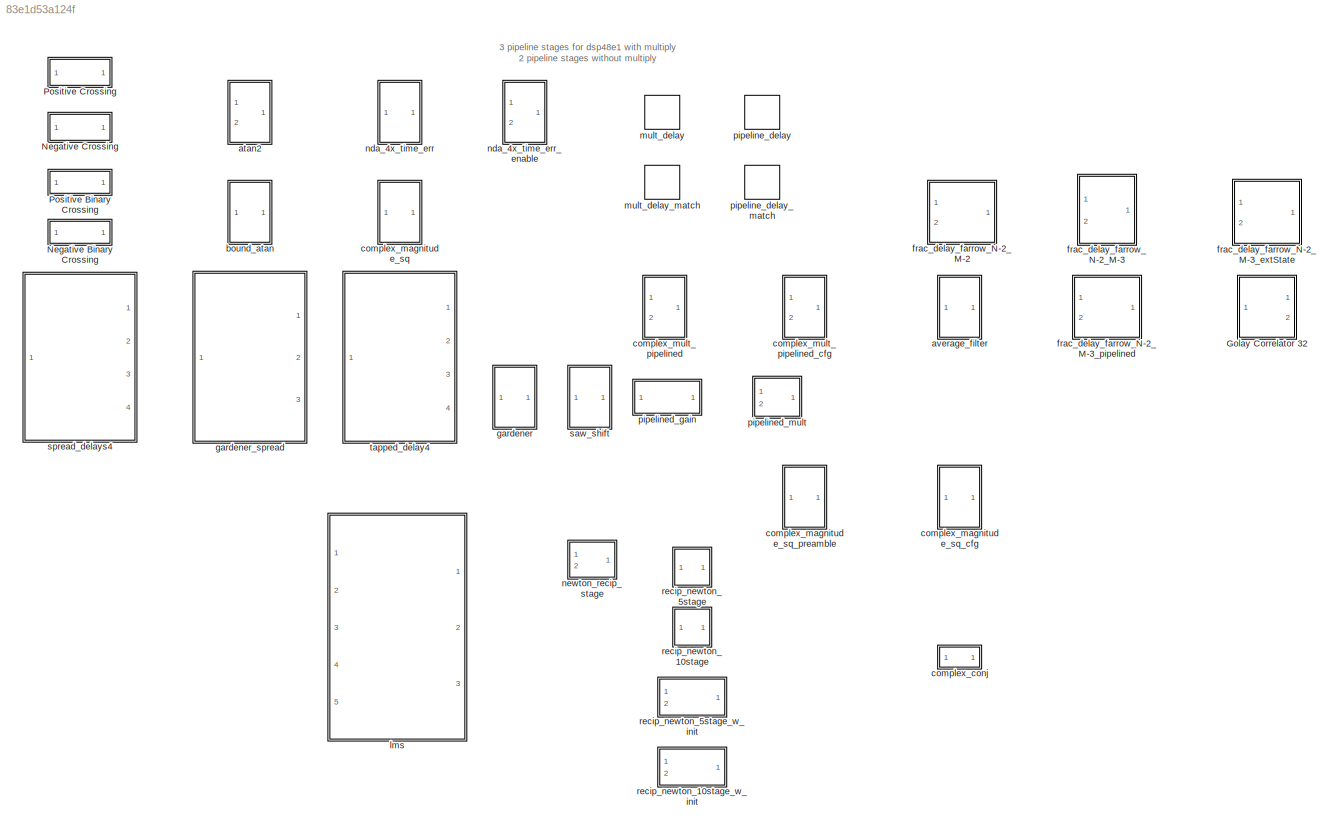
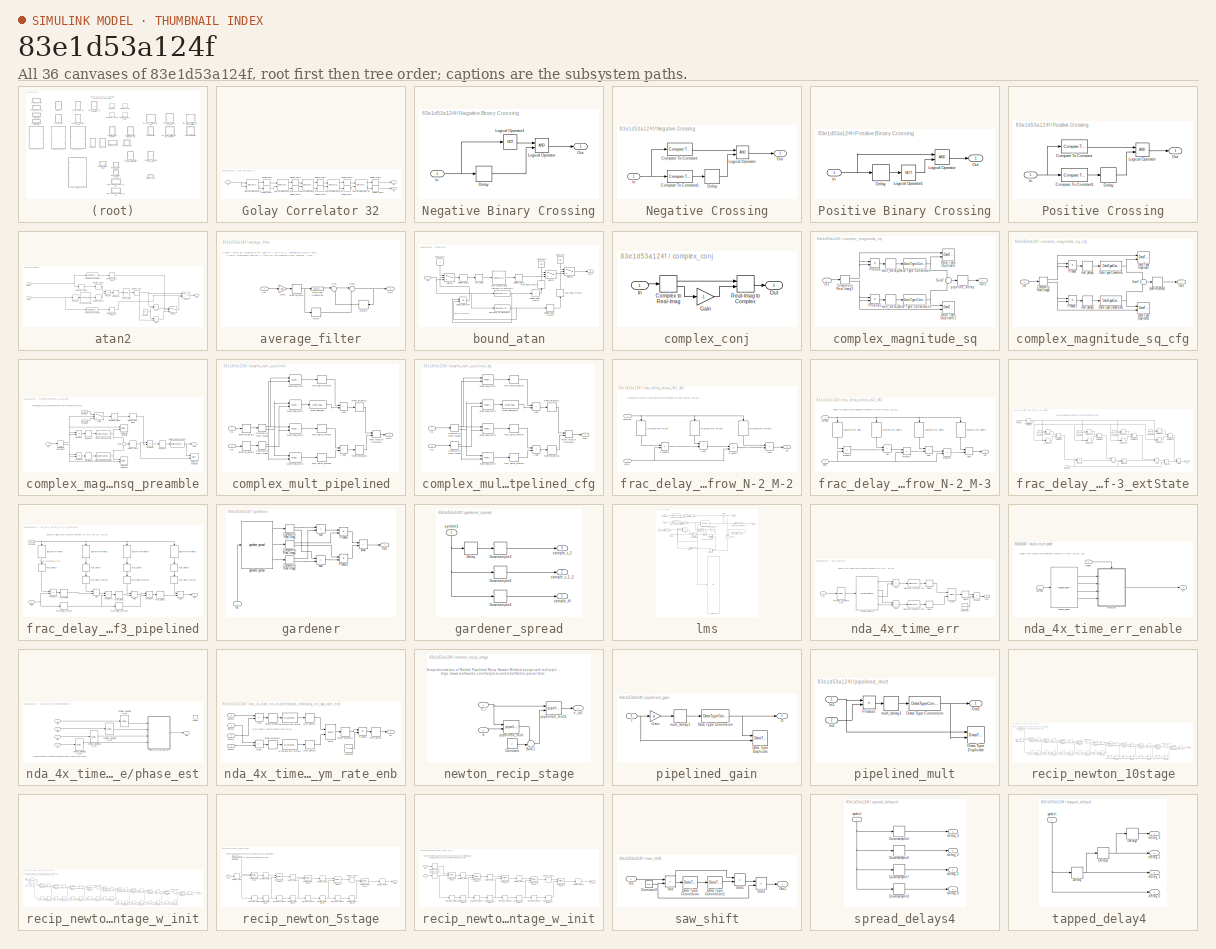
[diagram: thumbnail index - all 36 canvases of the model, root first then tree order]
MODEL slx_83e1d53a124f
KIND library
CONFIG AbsTol = auto
CONFIG EnableMultiTasking = on
CONFIG FixedStep = auto
CONFIG MaxStep = auto
CONFIG MinStep = auto
CONFIG RelTol = 1e-3
CONFIG SampleTimeConstraint = Unconstrained
CONFIG Solver = ode45
CONFIG SolverName = ode45
CONFIG StartTime = 0.0
CONFIG StopTime = 10.0
BLOCK [SubSystem] Golay Correlator 32
  Ports = [1, 2]
  RTWSystemCode = Reusable function
  RequestExecContextInheritance = off
  TreatAsAtomicUnit = on
BLOCK [Outport] Golay Correlator 32/Ca
  VectorParamsAs1DForOutWhenUnconnected = off
BLOCK [Outport] Golay Correlator 32/Cb
  Port = 2
  VectorParamsAs1DForOutWhenUnconnected = off
BLOCK [Reference] Golay Correlator 32/GolayCoralatorBase_fp  REF=golayLib/GolayCoralatorBase_fp
  Ports = [2, 2]
  SourceBlock = golayLib/GolayCoralatorBase_fp
BLOCK [Reference] Golay Correlator 32/GolayCoralatorBase_fp1  REF=golayLib/GolayCoralatorBase_fp
  Ports = [2, 2]
  SourceBlock = golayLib/GolayCoralatorBase_fp
BLOCK [Reference] Golay Correlator 32/GolayCoralatorBase_fp2  REF=golayLib/GolayCoralatorBase_fp
  Ports = [2, 2]
  SourceBlock = golayLib/GolayCoralatorBase_fp
BLOCK [Reference] Golay Correlator 32/GolayCoralatorBase_fp3  REF=golayLib/GolayCoralatorBase_fp
  Ports = [2, 2]
  SourceBlock = golayLib/GolayCoralatorBase_fp
BLOCK [Reference] Golay Correlator 32/GolayCoralatorBase_fp4  REF=golayLib/GolayCoralatorBase_fp
  Ports = [2, 2]
  SourceBlock = golayLib/GolayCoralatorBase_fp
BLOCK [Inport] Golay Correlator 32/In
BLOCK [Delay] Golay Correlator 32/pipeline_delay
  DelayLength = regular_pipeline
  InputPortMap = u0
  Ports = [1, 1]
BLOCK [Delay] Golay Correlator 32/pipeline_delay1
  DelayLength = regular_pipeline
  InputPortMap = u0
  Ports = [1, 1]
BLOCK [Delay] Golay Correlator 32/pipeline_delay2
  DelayLength = regular_pipeline
  InputPortMap = u0
  Ports = [1, 1]
BLOCK [Delay] Golay Correlator 32/pipeline_delay3
  DelayLength = regular_pipeline
  InputPortMap = u0
  Ports = [1, 1]
BLOCK [Delay] Golay Correlator 32/pipeline_delay4
  DelayLength = regular_pipeline
  InputPortMap = u0
  Ports = [1, 1]
BLOCK [Delay] Golay Correlator 32/pipeline_delay5
  DelayLength = regular_pipeline
  InputPortMap = u0
  Ports = [1, 1]
BLOCK [Delay] Golay Correlator 32/pipeline_delay6
  DelayLength = regular_pipeline
  InputPortMap = u0
  Ports = [1, 1]
BLOCK [Delay] Golay Correlator 32/pipeline_delay7
  DelayLength = regular_pipeline
  InputPortMap = u0
  Ports = [1, 1]
BLOCK [Delay] Golay Correlator 32/pipeline_delay8
  DelayLength = regular_pipeline
  InputPortMap = u0
  Ports = [1, 1]
BLOCK [Delay] Golay Correlator 32/pipeline_delay9
  DelayLength = regular_pipeline
  InputPortMap = u0
  Ports = [1, 1]
BLOCK [SubSystem] Negative Binary Crossing
  Ports = [1, 1]
  RequestExecContextInheritance = off
BLOCK [Delay] Negative Binary Crossing/Delay
  DelayLength = 1
  InitialCondition = 0
  InputPortMap = u0
  Ports = [1, 1]
BLOCK [Inport] Negative Binary Crossing/In
  OutDataTypeStr = boolean
BLOCK [Logic] Negative Binary Crossing/Logical Operator
  AllPortsSameDT = off
  OutDataTypeStr = boolean
  Ports = [2, 1]
BLOCK [Logic] Negative Binary Crossing/Logical Operator1
  AllPortsSameDT = off
  Inputs = 1
  Operator = NOT
  OutDataTypeStr = boolean
  Ports = [1, 1]
BLOCK [Outport] Negative Binary Crossing/Out
  OutDataTypeStr = boolean
  VectorParamsAs1DForOutWhenUnconnected = off
BLOCK [SubSystem] Negative Crossing
  Ports = [1, 1]
  RequestExecContextInheritance = off
BLOCK [Reference] Negative Crossing/Compare To Constant  REF=simulink/Logic and Bit
Operations/Compare
To Constant
  Ports = [1, 1]
  SourceBlock = simulink/Logic and Bit\nOperations/Compare\nTo Constant
  SourceProductBaseCode = SL
  SourceType = Compare To Constant
BLOCK [Reference] Negative Crossing/Compare To Constant1  REF=simulink/Logic and Bit
Operations/Compare
To Constant
  Ports = [1, 1]
  SourceBlock = simulink/Logic and Bit\nOperations/Compare\nTo Constant
  SourceProductBaseCode = SL
  SourceType = Compare To Constant
BLOCK [Delay] Negative Crossing/Delay
  DelayLength = 1
  InitialCondition = 0
  InputPortMap = u0
  Ports = [1, 1]
BLOCK [Inport] Negative Crossing/In
BLOCK [Logic] Negative Crossing/Logical Operator
  AllPortsSameDT = off
  OutDataTypeStr = boolean
  Ports = [2, 1]
BLOCK [Outport] Negative Crossing/Out
  OutDataTypeStr = boolean
  VectorParamsAs1DForOutWhenUnconnected = off
BLOCK [SubSystem] Positive Binary Crossing
  Ports = [1, 1]
  RequestExecContextInheritance = off
BLOCK [Delay] Positive Binary Crossing/Delay
  DelayLength = 1
  InitialCondition = 0
  InputPortMap = u0
  Ports = [1, 1]
BLOCK [Inport] Positive Binary Crossing/In
  OutDataTypeStr = boolean
BLOCK [Logic] Positive Binary Crossing/Logical Operator
  AllPortsSameDT = off
  OutDataTypeStr = boolean
  Ports = [2, 1]
BLOCK [Logic] Positive Binary Crossing/Logical Operator1
  AllPortsSameDT = off
  Inputs = 1
  Operator = NOT
  OutDataTypeStr = boolean
  Ports = [1, 1]
BLOCK [Outport] Positive Binary Crossing/Out
  OutDataTypeStr = boolean
  VectorParamsAs1DForOutWhenUnconnected = off
BLOCK [SubSystem] Positive Crossing
  Ports = [1, 1]
  RequestExecContextInheritance = off
BLOCK [Reference] Positive Crossing/Compare To Constant  REF=simulink/Logic and Bit
Operations/Compare
To Constant
  Ports = [1, 1]
  SourceBlock = simulink/Logic and Bit\nOperations/Compare\nTo Constant
  SourceProductBaseCode = SL
  SourceType = Compare To Constant
BLOCK [Reference] Positive Crossing/Compare To Constant1  REF=simulink/Logic and Bit
Operations/Compare
To Constant
  Ports = [1, 1]
  SourceBlock = simulink/Logic and Bit\nOperations/Compare\nTo Constant
  SourceProductBaseCode = SL
  SourceType = Compare To Constant
BLOCK [Delay] Positive Crossing/Delay
  DelayLength = 1
  InitialCondition = 0
  InputPortMap = u0
  Ports = [1, 1]
BLOCK [Inport] Positive Crossing/In
BLOCK [Logic] Positive Crossing/Logical Operator
  AllPortsSameDT = off
  OutDataTypeStr = boolean
  Ports = [2, 1]
BLOCK [Outport] Positive Crossing/Out
  OutDataTypeStr = boolean
  VectorParamsAs1DForOutWhenUnconnected = off
BLOCK [SubSystem] atan2
  Ports = [2, 1]
  RequestExecContextInheritance = off
BLOCK [Sum] atan2/Add
  IconShape = rectangular
  Ports = [2, 1]
BLOCK [Reference] atan2/Compare To Constant1  REF=simulink/Logic and Bit
Operations/Compare
To Constant
  Ports = [1, 1]
  SourceBlock = simulink/Logic and Bit\nOperations/Compare\nTo Constant
  SourceProductBaseCode = SL
  SourceType = Compare To Constant
BLOCK [Reference] atan2/Compare To Constant2  REF=simulink/Logic and Bit
Operations/Compare
To Constant
  Ports = [1, 1]
  SourceBlock = simulink/Logic and Bit\nOperations/Compare\nTo Constant
  SourceProductBaseCode = SL
  SourceType = Compare To Constant
BLOCK [Constant] atan2/Constant
  OutDataTypeStr = Inherit: Inherit via back propagation
  SampleTime = -1
  Value = pi
BLOCK [Outport] atan2/Out1
  VectorParamsAs1DForOutWhenUnconnected = off
BLOCK [Product] atan2/Product5
  OutDataTypeStr = Inherit: Same as first input
  Ports = [2, 1]
BLOCK [Sum] atan2/Sub
  IconShape = rectangular
  Inputs = -+
  Ports = [2, 1]
BLOCK [Switch] atan2/Switch1
  Criteria = u2 ~= 0
  InputSameDT = off
  OutDataTypeStr = Inherit: Inherit via back propagation
  SaturateOnIntegerOverflow = off
BLOCK [Switch] atan2/Switch8
  Criteria = u2 ~= 0
  InputSameDT = off
  OutDataTypeStr = Inherit: Inherit via back propagation
  SaturateOnIntegerOverflow = off
BLOCK [Reference] atan2/bound_atan  REF=$bdroot/bound_atan
  Ports = [1, 1]
  SourceBlock = $bdroot/bound_atan
  SourceType = SubSystem
BLOCK [Inport] atan2/imag_y
BLOCK [Lookup_n-D] atan2/inv Lookup Table
  BreakpointsForDimension1 = -frac_lut_domain:frac_lut_res:frac_lut_domain
  DiagnosticForOutOfRangeInput = Error
  IndexSearchMethod = Evenly spaced points
  InternalRulePriority = Speed
  InterpMethod = Flat
  NumberOfTableDimensions = 1
  Ports = [1, 1]
  RndMeth = Simplest
  Table = ones(size(-frac_lut_domain:frac_lut_res:frac_lut_domain))./(-frac_lut_domain:frac_lut_res:frac_lut_domain)
BLOCK [Delay] atan2/mult_delay
  DelayLength = mult_pipeline
  InputPortMap = u0
  Ports = [1, 1]
BLOCK [Delay] atan2/mult_delay1
  DelayLength = mult_pipeline
  InputPortMap = u0
  Ports = [1, 1]
BLOCK [Delay] atan2/mult_delay_match
  DelayLength = mult_pipeline
  InputPortMap = u0
  Ports = [1, 1]
BLOCK [Delay] atan2/pipeline_delay
  DelayLength = regular_pipeline
  InputPortMap = u0
  Ports = [1, 1]
BLOCK [Delay] atan2/pipeline_delay1
  DelayLength = regular_pipeline
  InputPortMap = u0
  Ports = [1, 1]
BLOCK [Delay] atan2/pipeline_delay2
  DelayLength = regular_pipeline
  InputPortMap = u0
  Ports = [1, 1]
BLOCK [Delay] atan2/pipeline_delay_match
  DelayLength = mult_pipeline*(2+1)+regular_pipeline*3
  InputPortMap = u0
  Ports = [1, 1]
BLOCK [Delay] atan2/pipeline_delay_match1
  DelayLength = mult_pipeline*(2+1)+regular_pipeline*3
  InputPortMap = u0
  Ports = [1, 1]
BLOCK [Inport] atan2/real_x
  Port = 2
BLOCK [SubSystem] average_filter
  Ports = [1, 1]
  RequestExecContextInheritance = off
BLOCK [DataTypeConversion] average_filter/Data Type Conversion
  OutDataTypeStr = fixdt(1,42,22)
  RndMeth = Floor
  SaturateOnIntegerOverflow = off
BLOCK [Delay] average_filter/Delay
  DelayLength = samples
  InitialCondition = 0
  InputPortMap = u0
  Ports = [1, 1]
BLOCK [Delay] average_filter/Delay1
  DelayLength = 1
  InitialCondition = 0
  InputPortMap = u0
  NameLocation = top
  Ports = [1, 1]
BLOCK [Gain] average_filter/Gain
  Gain = gain
  OutDataTypeStr = Inherit: Same as input
BLOCK [Inport] average_filter/In1
BLOCK [Outport] average_filter/Out1
  VectorParamsAs1DForOutWhenUnconnected = off
BLOCK [Sum] average_filter/Sum
  Inputs = |++
  OutDataTypeStr = Inherit: Same as first input
  Ports = [2, 1]
BLOCK [Sum] average_filter/Sum1
  Inputs = |+-
  OutDataTypeStr = Inherit: Same as first input
  Ports = [2, 1]
BLOCK [Delay] average_filter/pipeline_delay
  DelayLength = pipe
  InputPortMap = u0
  Ports = [1, 1]
BLOCK [SubSystem] bound_atan
  Ports = [1, 1]
  RequestExecContextInheritance = off
BLOCK [Reference] bound_atan/Compare To Constant1  REF=simulink/Logic and Bit
Operations/Compare
To Constant
  Ports = [1, 1]
  SourceBlock = simulink/Logic and Bit\nOperations/Compare\nTo Constant
  SourceProductBaseCode = SL
  SourceType = Compare To Constant
BLOCK [Reference] bound_atan/Compare To Constant4  REF=simulink/Logic and Bit
Operations/Compare
To Constant
  Ports = [1, 1]
  SourceBlock = simulink/Logic and Bit\nOperations/Compare\nTo Constant
  SourceProductBaseCode = SL
  SourceType = Compare To Constant
BLOCK [Constant] bound_atan/Constant11
  NameLocation = left
  OutDataTypeStr = Inherit: Inherit via back propagation
  SampleTime = -1
  Value = 0
BLOCK [Constant] bound_atan/Constant3
  NameLocation = left
  OutDataTypeStr = Inherit: Inherit via back propagation
  SampleTime = -1
  Value = pi/2
BLOCK [Constant] bound_atan/Constant4
  NameLocation = left
  OutDataTypeStr = Inherit: Inherit via back propagation
  SampleTime = -1
  Value = -pi/2
BLOCK [Inport] bound_atan/In1
BLOCK [Logic] bound_atan/Logical Operator
  AllPortsSameDT = off
  Operator = OR
  OutDataTypeStr = boolean
  Ports = [2, 1]
BLOCK [Outport] bound_atan/Out1
  VectorParamsAs1DForOutWhenUnconnected = off
BLOCK [Switch] bound_atan/Switch2
  Criteria = u2 ~= 0
  InputSameDT = off
  OutDataTypeStr = Inherit: Inherit via back propagation
  SaturateOnIntegerOverflow = off
BLOCK [Switch] bound_atan/Switch3
  Criteria = u2 ~= 0
  InputSameDT = off
  OutDataTypeStr = Inherit: Inherit via back propagation
  SaturateOnIntegerOverflow = off
BLOCK [Switch] bound_atan/Switch8
  Criteria = u2 ~= 0
  InputSameDT = off
  OutDataTypeStr = Inherit: Inherit via back propagation
  SaturateOnIntegerOverflow = off
BLOCK [Lookup_n-D] bound_atan/atan Lookup Table
  BreakpointsForDimension1 = [-atanDomain:atanResolution:atanDomain]
  DiagnosticForOutOfRangeInput = Error
  IndexSearchMethod = Evenly spaced points
  InternalRulePriority = Speed
  InterpMethod = Flat
  NumberOfTableDimensions = 1
  Ports = [1, 1]
  RemoveProtectionInput = on
  RndMeth = Simplest
  Table = atan([-atanDomain:atanResolution:atanDomain])
BLOCK [Delay] bound_atan/mult_delay
  DelayLength = mult_pipeline
  InputPortMap = u0
  Ports = [1, 1]
BLOCK [Delay] bound_atan/mult_delay_match
  DelayLength = mult_pipeline
  InputPortMap = u0
  NameLocation = right
  Ports = [1, 1]
BLOCK [Delay] bound_atan/mult_delay_match1
  DelayLength = mult_pipeline
  InputPortMap = u0
  NameLocation = right
  Ports = [1, 1]
BLOCK [Delay] bound_atan/pipeline_delay1
  DelayLength = regular_pipeline
  InputPortMap = u0
  Ports = [1, 1]
BLOCK [Delay] bound_atan/pipeline_delay2
  DelayLength = regular_pipeline
  InputPortMap = u0
  Ports = [1, 1]
BLOCK [Delay] bound_atan/pipeline_delay_match
  DelayLength = regular_pipeline*2
  InputPortMap = u0
  Ports = [1, 1]
BLOCK [Delay] bound_atan/pipeline_delay_match1
  DelayLength = regular_pipeline*2
  InputPortMap = u0
  Ports = [1, 1]
BLOCK [SubSystem] complex_conj
  Ports = [1, 1]
  RequestExecContextInheritance = off
BLOCK [ComplexToRealImag] complex_conj/Complex to Real-Imag
  Ports = [1, 2]
BLOCK [Gain] complex_conj/Gain
  Gain = -1
  OutDataTypeStr = Inherit: Same as input
BLOCK [Inport] complex_conj/In
BLOCK [Outport] complex_conj/Out
  VectorParamsAs1DForOutWhenUnconnected = off
BLOCK [RealImagToComplex] complex_conj/Real-Imag to Complex
  Ports = [2, 1]
BLOCK [SubSystem] complex_magnitude_sq
  Ports = [1, 1]
  RequestExecContextInheritance = off
BLOCK [ComplexToRealImag] complex_magnitude_sq/Complex to Real-Imag3
  Ports = [1, 2]
BLOCK [DataTypeConversion] complex_magnitude_sq/Data Type Conversion
  RndMeth = Floor
  SaturateOnIntegerOverflow = off
BLOCK [DataTypeConversion] complex_magnitude_sq/Data Type Conversion1
  RndMeth = Floor
  SaturateOnIntegerOverflow = off
BLOCK [DataTypeDuplicate] complex_magnitude_sq/Data Type Duplicate
  Ports = [2]
BLOCK [DataTypeDuplicate] complex_magnitude_sq/Data Type Duplicate1
  Ports = [2]
BLOCK [Inport] complex_magnitude_sq/In1
BLOCK [Outport] complex_magnitude_sq/Out1
  VectorParamsAs1DForOutWhenUnconnected = off
BLOCK [Product] complex_magnitude_sq/Product
  Ports = [2, 1]
BLOCK [Product] complex_magnitude_sq/Product1
  Ports = [2, 1]
BLOCK [Sum] complex_magnitude_sq/Sum7
  NameLocation = top
  OutDataTypeStr = Inherit: Same as first input
  Ports = [2, 1]
BLOCK [Delay] complex_magnitude_sq/mult_delay1
  DelayLength = mult_pipeline*2
  InputPortMap = u0
  Ports = [1, 1]
BLOCK [Delay] complex_magnitude_sq/mult_delay2
  DelayLength = mult_pipeline*2
  InputPortMap = u0
  Ports = [1, 1]
BLOCK [Delay] complex_magnitude_sq/pipeline_delay
  DelayLength = regular_pipeline
  InputPortMap = u0
  Ports = [1, 1]
BLOCK [SubSystem] complex_magnitude_sq_cfg
  Ports = [1, 1]
  RequestExecContextInheritance = off
BLOCK [ComplexToRealImag] complex_magnitude_sq_cfg/Complex to Real-Imag3
  Ports = [1, 2]
BLOCK [DataTypeConversion] complex_magnitude_sq_cfg/Data Type Conversion
  RndMeth = Floor
  SaturateOnIntegerOverflow = off
BLOCK [DataTypeConversion] complex_magnitude_sq_cfg/Data Type Conversion1
  RndMeth = Floor
  SaturateOnIntegerOverflow = off
BLOCK [DataTypeDuplicate] complex_magnitude_sq_cfg/Data Type Duplicate
  Ports = [2]
BLOCK [DataTypeDuplicate] complex_magnitude_sq_cfg/Data Type Duplicate1
  Ports = [2]
BLOCK [Inport] complex_magnitude_sq_cfg/In1
BLOCK [Outport] complex_magnitude_sq_cfg/Out1
  VectorParamsAs1DForOutWhenUnconnected = off
BLOCK [Product] complex_magnitude_sq_cfg/Product
  Ports = [2, 1]
BLOCK [Product] complex_magnitude_sq_cfg/Product1
  Ports = [2, 1]
BLOCK [Sum] complex_magnitude_sq_cfg/Sum7
  NameLocation = top
  OutDataTypeStr = Inherit: Same as first input
  Ports = [2, 1]
BLOCK [Delay] complex_magnitude_sq_cfg/mult_delay1
  DelayLength = mult
  InputPortMap = u0
  Ports = [1, 1]
BLOCK [Delay] complex_magnitude_sq_cfg/mult_delay2
  DelayLength = mult
  InputPortMap = u0
  Ports = [1, 1]
BLOCK [Delay] complex_magnitude_sq_cfg/pipeline_delay1
  DelayLength = pipe
  InputPortMap = u0
  Ports = [1, 1]
BLOCK [SubSystem] complex_magnitude_sq_preamble
  Ports = [1, 1]
  RequestExecContextInheritance = off
BLOCK [ComplexToRealImag] complex_magnitude_sq_preamble/Complex to Real-Imag3
  Ports = [1, 2]
BLOCK [Constant] complex_magnitude_sq_preamble/Constant
  OutDataTypeStr = Inherit: Inherit via back propagation
BLOCK [Constant] complex_magnitude_sq_preamble/Constant1
  OutDataTypeStr = Inherit: Inherit via back propagation
  Value = -1
BLOCK [DataTypeConversion] complex_magnitude_sq_preamble/Data Type Conversion
  RndMeth = Floor
  SaturateOnIntegerOverflow = off
BLOCK [DataTypeConversion] complex_magnitude_sq_preamble/Data Type Conversion1
  RndMeth = Floor
  SaturateOnIntegerOverflow = off
BLOCK [DataTypeConversion] complex_magnitude_sq_preamble/Data Type Conversion2
  RndMeth = Floor
  SaturateOnIntegerOverflow = off
BLOCK [DataTypeDuplicate] complex_magnitude_sq_preamble/Data Type Duplicate
  Ports = [2]
BLOCK [DataTypeDuplicate] complex_magnitude_sq_preamble/Data Type Duplicate1
  Ports = [2]
BLOCK [DataTypeDuplicate] complex_magnitude_sq_preamble/Data Type Duplicate2
  Ports = [2]
BLOCK [Inport] complex_magnitude_sq_preamble/In1
BLOCK [Outport] complex_magnitude_sq_preamble/Out1
  VectorParamsAs1DForOutWhenUnconnected = off
BLOCK [Product] complex_magnitude_sq_preamble/Product
  Ports = [2, 1]
BLOCK [Product] complex_magnitude_sq_preamble/Product1
  Ports = [2, 1]
BLOCK [Product] complex_magnitude_sq_preamble/Product2
  Ports = [2, 1]
BLOCK [Sum] complex_magnitude_sq_preamble/Sum7
  NameLocation = top
  OutDataTypeStr = Inherit: Same as first input
  Ports = [2, 1]
BLOCK [Switch] complex_magnitude_sq_preamble/Switch
  InputSameDT = off
  SaturateOnIntegerOverflow = off
BLOCK [Delay] complex_magnitude_sq_preamble/mult_delay1
  DelayLength = mult
  InputPortMap = u0
  Ports = [1, 1]
BLOCK [Delay] complex_magnitude_sq_preamble/mult_delay2
  DelayLength = mult
  InputPortMap = u0
  Ports = [1, 1]
BLOCK [Delay] complex_magnitude_sq_preamble/mult_delay3
  DelayLength = mult
  InputPortMap = u0
  Ports = [1, 1]
BLOCK [Delay] complex_magnitude_sq_preamble/mult_delay_match
  DelayLength = mult
  InputPortMap = u0
  Ports = [1, 1]
BLOCK [Delay] complex_magnitude_sq_preamble/pipeline_delay1
  DelayLength = pipe
  InputPortMap = u0
  Ports = [1, 1]
BLOCK [Delay] complex_magnitude_sq_preamble/pipeline_delay_match
  DelayLength = pipe
  InputPortMap = u0
  Ports = [1, 1]
BLOCK [SubSystem] complex_mult_pipelined
  Ports = [2, 1]
  RequestExecContextInheritance = off
BLOCK [Sum] complex_mult_pipelined/Add1
  AccumDataTypeStr = Inherit: Same as first input
  IconShape = rectangular
  OutDataTypeStr = Inherit: Same as first input
  Ports = [2, 1]
BLOCK [Sum] complex_mult_pipelined/Add2
  AccumDataTypeStr = Inherit: Same as first input
  IconShape = rectangular
  OutDataTypeStr = Inherit: Same as first input
  Ports = [2, 1]
BLOCK [ComplexToRealImag] complex_mult_pipelined/Complex to Real-Imag3
  Ports = [1, 2]
BLOCK [ComplexToRealImag] complex_mult_pipelined/Complex to Real-Imag4
  Ports = [1, 2]
BLOCK [Inport] complex_mult_pipelined/In1
BLOCK [Inport] complex_mult_pipelined/In2
  Port = 2
BLOCK [Outport] complex_mult_pipelined/Out1
  VectorParamsAs1DForOutWhenUnconnected = off
BLOCK [RealImagToComplex] complex_mult_pipelined/Real-Imag to Complex2
  Ports = [2, 1]
BLOCK [Delay] complex_mult_pipelined/mult_delay_match3
  DelayLength = mult_pipeline
  InputPortMap = u0
  Ports = [1, 1]
BLOCK [Delay] complex_mult_pipelined/mult_delay_match4
  DelayLength = mult_pipeline
  InputPortMap = u0
  Ports = [1, 1]
BLOCK [Delay] complex_mult_pipelined/mult_delay_match5
  DelayLength = mult_pipeline
  InputPortMap = u0
  Ports = [1, 1]
BLOCK [Delay] complex_mult_pipelined/pipeline_delay1
  DelayLength = regular_pipeline
  InputPortMap = u0
  Ports = [1, 1]
BLOCK [Delay] complex_mult_pipelined/pipeline_delay2
  DelayLength = regular_pipeline
  InputPortMap = u0
  Ports = [1, 1]
BLOCK [Delay] complex_mult_pipelined/pipeline_delay3
  DelayLength = regular_pipeline
  InputPortMap = u0
  Ports = [1, 1]
BLOCK [Delay] complex_mult_pipelined/pipeline_delay6
  DelayLength = regular_pipeline
  InputPortMap = u0
  Ports = [1, 1]
BLOCK [Reference] complex_mult_pipelined/pipelined_gain  REF=$bdroot/pipelined_gain
  Ports = [1, 1]
  SourceBlock = $bdroot/pipelined_gain
  SourceType = Pipelined Gain
BLOCK [Reference] complex_mult_pipelined/pipelined_mult  REF=$bdroot/pipelined_mult
  Ports = [2, 1]
  SourceBlock = $bdroot/pipelined_mult
  SourceType = Pipelined Multiplier
BLOCK [Reference] complex_mult_pipelined/pipelined_mult1  REF=$bdroot/pipelined_mult
  Ports = [2, 1]
  SourceBlock = $bdroot/pipelined_mult
  SourceType = Pipelined Multiplier
BLOCK [Reference] complex_mult_pipelined/pipelined_mult2  REF=$bdroot/pipelined_mult
  Ports = [2, 1]
  SourceBlock = $bdroot/pipelined_mult
  SourceType = Pipelined Multiplier
BLOCK [Reference] complex_mult_pipelined/pipelined_mult3  REF=$bdroot/pipelined_mult
  Ports = [2, 1]
  SourceBlock = $bdroot/pipelined_mult
  SourceType = Pipelined Multiplier
BLOCK [SubSystem] complex_mult_pipelined_cfg
  Ports = [2, 1]
  RequestExecContextInheritance = off
BLOCK [Sum] complex_mult_pipelined_cfg/Add1
  AccumDataTypeStr = Inherit: Same as first input
  IconShape = rectangular
  OutDataTypeStr = Inherit: Same as first input
  Ports = [2, 1]
BLOCK [Sum] complex_mult_pipelined_cfg/Add2
  AccumDataTypeStr = Inherit: Same as first input
  IconShape = rectangular
  OutDataTypeStr = Inherit: Same as first input
  Ports = [2, 1]
BLOCK [ComplexToRealImag] complex_mult_pipelined_cfg/Complex to Real-Imag3
  Ports = [1, 2]
BLOCK [ComplexToRealImag] complex_mult_pipelined_cfg/Complex to Real-Imag4
  Ports = [1, 2]
BLOCK [Inport] complex_mult_pipelined_cfg/In1
BLOCK [Inport] complex_mult_pipelined_cfg/In2
  Port = 2
BLOCK [Outport] complex_mult_pipelined_cfg/Out1
  VectorParamsAs1DForOutWhenUnconnected = off
BLOCK [RealImagToComplex] complex_mult_pipelined_cfg/Real-Imag to Complex2
  Ports = [2, 1]
BLOCK [Delay] complex_mult_pipelined_cfg/mult_delay_match3
  DelayLength = mult
  InputPortMap = u0
  Ports = [1, 1]
BLOCK [Delay] complex_mult_pipelined_cfg/mult_delay_match4
  DelayLength = mult
  InputPortMap = u0
  Ports = [1, 1]
BLOCK [Delay] complex_mult_pipelined_cfg/mult_delay_match5
  DelayLength = mult
  InputPortMap = u0
  Ports = [1, 1]
BLOCK [Delay] complex_mult_pipelined_cfg/pipeline_delay1
  DelayLength = pipe
  InputPortMap = u0
  Ports = [1, 1]
BLOCK [Delay] complex_mult_pipelined_cfg/pipeline_delay6
  DelayLength = pipe
  InputPortMap = u0
  Ports = [1, 1]
BLOCK [Reference] complex_mult_pipelined_cfg/pipelined_gain1  REF=$bdroot/pipelined_gain
  Ports = [1, 1]
  SourceBlock = $bdroot/pipelined_gain
  SourceType = Pipelined Gain
BLOCK [Reference] complex_mult_pipelined_cfg/pipelined_mult1  REF=$bdroot/pipelined_mult
  Ports = [2, 1]
  SourceBlock = $bdroot/pipelined_mult
  SourceType = Pipelined Multiplier
BLOCK [Reference] complex_mult_pipelined_cfg/pipelined_mult2  REF=$bdroot/pipelined_mult
  Ports = [2, 1]
  SourceBlock = $bdroot/pipelined_mult
  SourceType = Pipelined Multiplier
BLOCK [Reference] complex_mult_pipelined_cfg/pipelined_mult3  REF=$bdroot/pipelined_mult
  Ports = [2, 1]
  SourceBlock = $bdroot/pipelined_mult
  SourceType = Pipelined Multiplier
BLOCK [Reference] complex_mult_pipelined_cfg/pipelined_mult4  REF=$bdroot/pipelined_mult
  Ports = [2, 1]
  SourceBlock = $bdroot/pipelined_mult
  SourceType = Pipelined Multiplier
BLOCK [SubSystem] frac_delay_farrow_N-2_M-2
  Ports = [2, 1]
  RequestExecContextInheritance = off
BLOCK [Sum] frac_delay_farrow_N-2_M-2/Add1
  IconShape = rectangular
  OutDataTypeStr = Inherit: Same as first input
  Ports = [2, 1]
BLOCK [Sum] frac_delay_farrow_N-2_M-2/Add2
  IconShape = rectangular
  OutDataTypeStr = Inherit: Same as first input
  Ports = [2, 1]
BLOCK [DiscreteFir] frac_delay_farrow_N-2_M-2/Discrete FIR Filter
  Coefficients = [-0.36881, -0.34303, -0.34303, 0.36881]
  InputPortMap = u0
  NameLocation = left
  OutDataTypeStr = Inherit: Same as input
  OutputPortMap = o0
  Ports = [1, 1]
BLOCK [DiscreteFir] frac_delay_farrow_N-2_M-2/Discrete FIR Filter1
  Coefficients = [-0.36881, -0.65696, 1.34303, -0.36881]
  InputPortMap = u0
  NameLocation = left
  OutDataTypeStr = Inherit: Same as input
  OutputPortMap = o0
  Ports = [1, 1]
BLOCK [DiscreteFir] frac_delay_farrow_N-2_M-2/Discrete FIR Filter2
  Coefficients = [0, 1, 0, 0]
  InputPortMap = u0
  NameLocation = left
  OutDataTypeStr = Inherit: Same as input
  OutputPortMap = o0
  Ports = [1, 1]
BLOCK [Product] frac_delay_farrow_N-2_M-2/Product1
  OutDataTypeStr = Inherit: Same as first input
  Ports = [2, 1]
BLOCK [Product] frac_delay_farrow_N-2_M-2/Product5
  OutDataTypeStr = Inherit: Same as first input
  Ports = [2, 1]
BLOCK [Inport] frac_delay_farrow_N-2_M-2/delay
  Port = 2
BLOCK [Outport] frac_delay_farrow_N-2_M-2/out
  VectorParamsAs1DForOutWhenUnconnected = off
BLOCK [Inport] frac_delay_farrow_N-2_M-2/samples
BLOCK [SubSystem] frac_delay_farrow_N-2_M-3
  Ports = [2, 1]
  RequestExecContextInheritance = off
BLOCK [Sum] frac_delay_farrow_N-2_M-3/Add
  AccumDataTypeStr = Inherit: Same as first input
  IconShape = rectangular
  Ports = [2, 1]
BLOCK [Sum] frac_delay_farrow_N-2_M-3/Add1
  AccumDataTypeStr = Inherit: Same as first input
  IconShape = rectangular
  Ports = [2, 1]
BLOCK [Sum] frac_delay_farrow_N-2_M-3/Add2
  AccumDataTypeStr = Inherit: Same as first input
  IconShape = rectangular
  Ports = [2, 1]
BLOCK [DiscreteFir] frac_delay_farrow_N-2_M-3/Discrete FIR Filter
  AccumDataTypeStr = Inherit: Same as input
  Coefficients = [-0.22485, 0.64567, -0.64567, 0.22485]
  FilterStructure = Direct form transposed
  InputPortMap = u0
  NameLocation = left
  OutDataTypeStr = Inherit: Same as input
  OutputPortMap = o0
  Ports = [1, 1]
  ProductDataTypeStr = Inherit: Same as input
BLOCK [DiscreteFir] frac_delay_farrow_N-2_M-3/Discrete FIR Filter1
  AccumDataTypeStr = Inherit: Same as input
  Coefficients = [0.70609, -1.31155, 0.62547, 0.03154]
  FilterStructure = Direct form transposed
  InputPortMap = u0
  NameLocation = left
  OutDataTypeStr = Inherit: Same as input
  OutputPortMap = o0
  Ports = [1, 1]
  ProductDataTypeStr = Inherit: Same as input
BLOCK [DiscreteFir] frac_delay_farrow_N-2_M-3/Discrete FIR Filter2
  AccumDataTypeStr = Inherit: Same as input
  Coefficients = [-0.48124, -0.33413, 1.02020, -0.25639]
  FilterStructure = Direct form transposed
  InputPortMap = u0
  NameLocation = left
  OutDataTypeStr = Inherit: Same as input
  OutputPortMap = o0
  Ports = [1, 1]
  ProductDataTypeStr = Inherit: Same as input
BLOCK [DiscreteFir] frac_delay_farrow_N-2_M-3/Discrete FIR Filter3
  AccumDataTypeStr = Inherit: Same as input
  Coefficients = [0, 1, 0, 0]
  FilterStructure = Direct form transposed
  InputPortMap = u0
  NameLocation = left
  OutDataTypeStr = Inherit: Same as input
  OutputPortMap = o0
  Ports = [1, 1]
  ProductDataTypeStr = Inherit: Same as input
BLOCK [Product] frac_delay_farrow_N-2_M-3/Product1
  OutDataTypeStr = Inherit: Same as first input
  Ports = [2, 1]
BLOCK [Product] frac_delay_farrow_N-2_M-3/Product2
  OutDataTypeStr = Inherit: Same as first input
  Ports = [2, 1]
BLOCK [Product] frac_delay_farrow_N-2_M-3/Product5
  OutDataTypeStr = Inherit: Same as first input
  Ports = [2, 1]
BLOCK [Inport] frac_delay_farrow_N-2_M-3/delay
  Port = 2
BLOCK [Outport] frac_delay_farrow_N-2_M-3/out
  VectorParamsAs1DForOutWhenUnconnected = off
BLOCK [Inport] frac_delay_farrow_N-2_M-3/samples
BLOCK [SubSystem] frac_delay_farrow_N-2_M-3_extState
  Ports = [2, 1]
  RequestExecContextInheritance = off
BLOCK [Sum] frac_delay_farrow_N-2_M-3_extState/Add
  AccumDataTypeStr = Inherit: Same as first input
  IconShape = rectangular
  Ports = [2, 1]
BLOCK [Sum] frac_delay_farrow_N-2_M-3_extState/Add1
  AccumDataTypeStr = Inherit: Same as first input
  IconShape = rectangular
  Ports = [2, 1]
BLOCK [Sum] frac_delay_farrow_N-2_M-3_extState/Add2
  AccumDataTypeStr = Inherit: Same as first input
  IconShape = rectangular
  Ports = [2, 1]
BLOCK [ComplexToRealImag] frac_delay_farrow_N-2_M-3_extState/Complex to Real-Imag
  Ports = [1, 2]
BLOCK [Constant] frac_delay_farrow_N-2_M-3_extState/Constant
  OutDataTypeStr = Inherit: Inherit via back propagation
  Value = [-0.22485, 0.64567, -0.64567, 0.22485]
BLOCK [Constant] frac_delay_farrow_N-2_M-3_extState/Constant1
  OutDataTypeStr = Inherit: Inherit via back propagation
  Value = [0.70609, -1.31155, 0.62547, 0.03154]
BLOCK [Constant] frac_delay_farrow_N-2_M-3_extState/Constant2
  OutDataTypeStr = Inherit: Inherit via back propagation
  Value = [-0.48124, -0.33413, 1.02020, -0.25639]
BLOCK [Constant] frac_delay_farrow_N-2_M-3_extState/Constant3
  OutDataTypeStr = Inherit: Inherit via back propagation
  Value = [0, 1, 0, 0]
BLOCK [DotProduct] frac_delay_farrow_N-2_M-3_extState/Dot Product
  OutDataTypeStr = Inherit: Inherit via internal rule
BLOCK [DotProduct] frac_delay_farrow_N-2_M-3_extState/Dot Product1
  OutDataTypeStr = Inherit: Inherit via internal rule
BLOCK [DotProduct] frac_delay_farrow_N-2_M-3_extState/Dot Product2
  OutDataTypeStr = Inherit: Inherit via internal rule
BLOCK [DotProduct] frac_delay_farrow_N-2_M-3_extState/Dot Product3
  OutDataTypeStr = Inherit: Inherit via internal rule
BLOCK [DotProduct] frac_delay_farrow_N-2_M-3_extState/Dot Product4
  OutDataTypeStr = Inherit: Inherit via internal rule
BLOCK [DotProduct] frac_delay_farrow_N-2_M-3_extState/Dot Product5
  OutDataTypeStr = Inherit: Inherit via internal rule
BLOCK [DotProduct] frac_delay_farrow_N-2_M-3_extState/Dot Product6
  OutDataTypeStr = Inherit: Inherit via internal rule
BLOCK [DotProduct] frac_delay_farrow_N-2_M-3_extState/Dot Product7
  OutDataTypeStr = Inherit: Inherit via internal rule
BLOCK [Product] frac_delay_farrow_N-2_M-3_extState/Product1
  OutDataTypeStr = Inherit: Same as first input
  Ports = [2, 1]
BLOCK [Product] frac_delay_farrow_N-2_M-3_extState/Product2
  OutDataTypeStr = Inherit: Same as first input
  Ports = [2, 1]
BLOCK [Product] frac_delay_farrow_N-2_M-3_extState/Product5
  OutDataTypeStr = Inherit: Same as first input
  Ports = [2, 1]
BLOCK [RealImagToComplex] frac_delay_farrow_N-2_M-3_extState/Real-Imag to Complex
  Ports = [2, 1]
BLOCK [RealImagToComplex] frac_delay_farrow_N-2_M-3_extState/Real-Imag to Complex1
  Ports = [2, 1]
BLOCK [RealImagToComplex] frac_delay_farrow_N-2_M-3_extState/Real-Imag to Complex2
  Ports = [2, 1]
BLOCK [RealImagToComplex] frac_delay_farrow_N-2_M-3_extState/Real-Imag to Complex3
  Ports = [2, 1]
BLOCK [Inport] frac_delay_farrow_N-2_M-3_extState/fracDelay
  Port = 2
BLOCK [Outport] frac_delay_farrow_N-2_M-3_extState/out
  VectorParamsAs1DForOutWhenUnconnected = off
BLOCK [Inport] frac_delay_farrow_N-2_M-3_extState/samples
  PortDimensions = 4
BLOCK [SubSystem] frac_delay_farrow_N-2_M-3_pipelined
  Ports = [2, 1]
  RequestExecContextInheritance = off
BLOCK [Sum] frac_delay_farrow_N-2_M-3_pipelined/Add
  AccumDataTypeStr = Inherit: Same as first input
  IconShape = rectangular
  Ports = [2, 1]
BLOCK [Sum] frac_delay_farrow_N-2_M-3_pipelined/Add1
  AccumDataTypeStr = Inherit: Same as first input
  IconShape = rectangular
  Ports = [2, 1]
BLOCK [Sum] frac_delay_farrow_N-2_M-3_pipelined/Add2
  AccumDataTypeStr = Inherit: Same as first input
  IconShape = rectangular
  Ports = [2, 1]
BLOCK [DiscreteFir] frac_delay_farrow_N-2_M-3_pipelined/Discrete FIR Filter
  AccumDataTypeStr = Inherit: Same as input
  Coefficients = [-0.22485, 0.64567, -0.64567, 0.22485]
  FilterStructure = Direct form transposed
  InputPortMap = u0
  NameLocation = left
  OutDataTypeStr = Inherit: Same as input
  OutputPortMap = o0
  Ports = [1, 1]
  ProductDataTypeStr = Inherit: Same as input
BLOCK [DiscreteFir] frac_delay_farrow_N-2_M-3_pipelined/Discrete FIR Filter1
  AccumDataTypeStr = Inherit: Same as input
  Coefficients = [0.70609, -1.31155, 0.62547, 0.03154]
  FilterStructure = Direct form transposed
  InputPortMap = u0
  NameLocation = left
  OutDataTypeStr = Inherit: Same as input
  OutputPortMap = o0
  Ports = [1, 1]
  ProductDataTypeStr = Inherit: Same as input
BLOCK [DiscreteFir] frac_delay_farrow_N-2_M-3_pipelined/Discrete FIR Filter2
  AccumDataTypeStr = Inherit: Same as input
  Coefficients = [-0.48124, -0.33413, 1.02020, -0.25639]
  FilterStructure = Direct form transposed
  InputPortMap = u0
  NameLocation = left
  OutDataTypeStr = Inherit: Same as input
  OutputPortMap = o0
  Ports = [1, 1]
  ProductDataTypeStr = Inherit: Same as input
BLOCK [DiscreteFir] frac_delay_farrow_N-2_M-3_pipelined/Discrete FIR Filter3
  AccumDataTypeStr = Inherit: Same as input
  Coefficients = [0, 1, 0, 0]
  FilterStructure = Direct form transposed
  InputPortMap = u0
  NameLocation = left
  OutDataTypeStr = Inherit: Same as input
  OutputPortMap = o0
  Ports = [1, 1]
  ProductDataTypeStr = Inherit: Same as input
BLOCK [Product] frac_delay_farrow_N-2_M-3_pipelined/Product1
  OutDataTypeStr = Inherit: Same as first input
  Ports = [2, 1]
BLOCK [Product] frac_delay_farrow_N-2_M-3_pipelined/Product2
  OutDataTypeStr = Inherit: Same as first input
  Ports = [2, 1]
BLOCK [Product] frac_delay_farrow_N-2_M-3_pipelined/Product5
  OutDataTypeStr = Inherit: Same as first input
  Ports = [2, 1]
BLOCK [Inport] frac_delay_farrow_N-2_M-3_pipelined/delay
  Port = 2
BLOCK [Delay] frac_delay_farrow_N-2_M-3_pipelined/mult_delay
  DelayLength = mult_pipeline
  InputPortMap = u0
  Ports = [1, 1]
BLOCK [Delay] frac_delay_farrow_N-2_M-3_pipelined/mult_delay1
  DelayLength = mult_pipeline
  InputPortMap = u0
  Ports = [1, 1]
BLOCK [Delay] frac_delay_farrow_N-2_M-3_pipelined/mult_delay2
  DelayLength = mult_pipeline
  InputPortMap = u0
  Ports = [1, 1]
BLOCK [Delay] frac_delay_farrow_N-2_M-3_pipelined/mult_delay3
  DelayLength = mult_pipeline
  InputPortMap = u0
  NameLocation = left
  Ports = [1, 1]
BLOCK [Delay] frac_delay_farrow_N-2_M-3_pipelined/mult_delay4
  DelayLength = mult_pipeline
  InputPortMap = u0
  NameLocation = left
  Ports = [1, 1]
BLOCK [Delay] frac_delay_farrow_N-2_M-3_pipelined/mult_delay5
  DelayLength = mult_pipeline
  InputPortMap = u0
  NameLocation = left
  Ports = [1, 1]
BLOCK [Delay] frac_delay_farrow_N-2_M-3_pipelined/mult_delay6
  DelayLength = mult_pipeline
  InputPortMap = u0
  NameLocation = left
  Ports = [1, 1]
BLOCK [Delay] frac_delay_farrow_N-2_M-3_pipelined/mult_delay_match
  DelayLength = mult_pipeline
  InputPortMap = u0
  Ports = [1, 1]
BLOCK [Delay] frac_delay_farrow_N-2_M-3_pipelined/mult_delay_match1
  DelayLength = mult_pipeline
  InputPortMap = u0
  Ports = [1, 1]
BLOCK [Delay] frac_delay_farrow_N-2_M-3_pipelined/mult_delay_match2
  DelayLength = mult_pipeline
  InputPortMap = u0
  NameLocation = left
  Ports = [1, 1]
BLOCK [Delay] frac_delay_farrow_N-2_M-3_pipelined/mult_delay_match3
  DelayLength = mult_pipeline*2
  InputPortMap = u0
  NameLocation = left
  Ports = [1, 1]
BLOCK [Delay] frac_delay_farrow_N-2_M-3_pipelined/mult_delay_match4
  DelayLength = mult_pipeline*3
  InputPortMap = u0
  NameLocation = left
  Ports = [1, 1]
BLOCK [Outport] frac_delay_farrow_N-2_M-3_pipelined/out
  VectorParamsAs1DForOutWhenUnconnected = off
BLOCK [Inport] frac_delay_farrow_N-2_M-3_pipelined/samples
BLOCK [SubSystem] gardener
  Ports = [1, 1]
  RequestExecContextInheritance = off
BLOCK [Sum] gardener/Add
  IconShape = rectangular
  Ports = [2, 1]
BLOCK [ComplexToRealImag] gardener/Complex to Real-Imag
  Ports = [1, 2]
BLOCK [ComplexToRealImag] gardener/Complex to Real-Imag1
  Ports = [1, 2]
BLOCK [ComplexToRealImag] gardener/Complex to Real-Imag2
  Ports = [1, 2]
BLOCK [Inport] gardener/In1
  NameLocation = right
BLOCK [Outport] gardener/Out1
  VectorParamsAs1DForOutWhenUnconnected = off
BLOCK [Product] gardener/Product
  Ports = [2, 1]
BLOCK [Product] gardener/Product1
  Ports = [2, 1]
BLOCK [Reference] gardener/gardener_spread  REF=$bdroot/gardener_spread
  Ports = [1, 3]
  SourceBlock = $bdroot/gardener_spread
  SourceType = SubSystem
BLOCK [Sum] gardener/sub
  IconShape = rectangular
  Inputs = +-
  Ports = [2, 1]
BLOCK [Sum] gardener/sub1
  IconShape = rectangular
  Inputs = +-
  Ports = [2, 1]
BLOCK [SubSystem] gardener_spread
  Ports = [1, 3]
  RequestExecContextInheritance = off
BLOCK [Delay] gardener_spread/Delay
  DelayLength = 1
  InitialCondition = 0
  InputPortMap = u0
  Ports = [1, 1]
BLOCK [DownSample] gardener_spread/Downsample3
  N = 4
  RateOptions = Allow multirate processing
  UserDataPersistent = on
BLOCK [DownSample] gardener_spread/Downsample4
  N = 4
  RateOptions = Allow multirate processing
  UserDataPersistent = on
BLOCK [DownSample] gardener_spread/Downsample6
  N = 4
  RateOptions = Allow multirate processing
  UserDataPersistent = on
  phase = 2
BLOCK [Outport] gardener_spread/sample_t0
  VectorParamsAs1DForOutWhenUnconnected = off
BLOCK [Outport] gardener_spread/sample_t_1_2
  Port = 2
  VectorParamsAs1DForOutWhenUnconnected = off
BLOCK [Outport] gardener_spread/sample_t_2
  Port = 3
  VectorParamsAs1DForOutWhenUnconnected = off
BLOCK [Inport] gardener_spread/symbol1
  NameLocation = right
BLOCK [SubSystem] lms
  Ports = [5, 3]
  RequestExecContextInheritance = off
BLOCK [DataTypeConversion] lms/Data Type Conversion
  OutDataTypeStr = fixdt(1,32,16)
  RndMeth = Floor
  SaturateOnIntegerOverflow = off
BLOCK [DataTypeConversion] lms/Data Type Conversion1
  OutDataTypeStr = fixdt(1,32,16)
  RndMeth = Floor
  SaturateOnIntegerOverflow = off
BLOCK [DataTypeConversion] lms/Data Type Conversion2
  OutDataTypeStr = fixdt(1,14,11)
  RndMeth = Floor
  SaturateOnIntegerOverflow = off
BLOCK [Delay] lms/Delay3
  DelayLength = lmsEqDepth/2-1
  InitialCondition = 0
  InputPortMap = u0
  Ports = [1, 1]
BLOCK [DiscreteFir] lms/Discrete FIR Filter
  AccumDataTypeStr = Inherit: Same as product output
  CoefSource = Input port
  FilterStructure = Direct form transposed
  InputPortMap = u0,u1
  OutputPortMap = o0
  Ports = [2, 1]
  ProductDataTypeStr = Inherit: Same as input
BLOCK [Display] lms/Display
  Decimation = 1
  Ports = [1]
BLOCK [Product] lms/Product
  NameLocation = left
  OutDataTypeStr = Inherit: Same as first input
  Ports = [2, 1]
BLOCK [Product] lms/Product1
  NameLocation = top
  OutDataTypeStr = Inherit: Same as first input
  Ports = [2, 1]
BLOCK [Sum] lms/Sum
  Inputs = |+-
  OutDataTypeStr = Inherit: Same as first input
  Ports = [2, 1]
BLOCK [Sum] lms/Sum1
  Inputs = |++
  NameLocation = top
  OutDataTypeStr = Inherit: Same as first input
  Ports = [2, 1]
BLOCK [Switch] lms/Switch
  Criteria = u2 > Threshold
  InputSameDT = off
  SaturateOnIntegerOverflow = off
BLOCK [Reference] lms/Tapped Delay  REF=simulink/Discrete/Tapped Delay
  Ports = [1, 1]
  SourceBlock = simulink/Discrete/Tapped Delay
  SourceProductBaseCode = SL
  SourceType = Tapped Delay Line
BLOCK [Reference] lms/Unit Delay Resettable  REF=simulink_need_slupdate/Unit Delay
Resettable
  Ports = [2, 1]
  SourceBlock = simulink_need_slupdate/Unit Delay\nResettable
  SourceProductBaseCode = SL
  SourceType = Unit Delay Resettable
BLOCK [Concatenate] lms/Vector Concatenate
  Ports = [2, 1]
BLOCK [Inport] lms/adapt
  Port = 4
BLOCK [Reference] lms/complex_conj  REF=$bdroot/complex_conj
  Ports = [1, 1]
  SourceBlock = $bdroot/complex_conj
  SourceType = SubSystem
BLOCK [Outport] lms/err
  Port = 2
  VectorParamsAs1DForOutWhenUnconnected = off
BLOCK [Inport] lms/expected
  Port = 2
BLOCK [Inport] lms/in
  OutDataTypeStr = fixdt(1,14,11)
BLOCK [Outport] lms/out
  VectorParamsAs1DForOutWhenUnconnected = off
BLOCK [Delay] lms/pipeline_delay1
  DelayLength = regular_pipeline
  InputPortMap = u0
  Ports = [1, 1]
BLOCK [Delay] lms/pipeline_delay2
  DelayLength = regular_pipeline
  InputPortMap = u0
  Ports = [1, 1]
BLOCK [Delay] lms/pipeline_delay3
  DelayLength = regular_pipeline
  InputPortMap = u0
  Ports = [1, 1]
BLOCK [Delay] lms/pipeline_delay4
  DelayLength = regular_pipeline
  InputPortMap = u0
  Ports = [1, 1]
BLOCK [Inport] lms/reset
  Port = 3
BLOCK [Inport] lms/step
  OutDataTypeStr = fixdt(1,14,11)
  Port = 5
BLOCK [Outport] lms/weights
  Port = 3
  VectorParamsAs1DForOutWhenUnconnected = off
BLOCK [Delay] mult_delay
  DelayLength = mult_pipeline
  InputPortMap = u0
  Ports = [1, 1]
BLOCK [Delay] mult_delay_match
  DelayLength = mult_pipeline
  InputPortMap = u0
  Ports = [1, 1]
BLOCK [SubSystem] nda_4x_time_err
  Ports = [1, 1]
  RequestExecContextInheritance = off
BLOCK [Constant] nda_4x_time_err/Constant1
  OutDataTypeStr = Inherit: Inherit via back propagation
  SampleTime = -1
  Value = -1/(2*pi)
BLOCK [Delay] nda_4x_time_err/Delay1
  DelayLength = 1
  InitialCondition = 0
  InputPortMap = u0
  Ports = [1, 1]
BLOCK [Delay] nda_4x_time_err/Delay3
  DelayLength = 1
  InitialCondition = 0
  InputPortMap = u0
  Ports = [1, 1]
BLOCK [Delay] nda_4x_time_err/Delay6
  DelayLength = 1
  InitialCondition = 0
  InputPortMap = u0
  Ports = [1, 1]
BLOCK [DiscreteTransferFcn] nda_4x_time_err/Discrete Transfer Fcn
  Denominator = averaging_denom
  InputPortMap = u0
  Numerator = averaging_num
  OutDataTypeStr = Inherit: Same as input
  Ports = [1, 1]
BLOCK [DiscreteTransferFcn] nda_4x_time_err/Discrete Transfer Fcn1
  Denominator = averaging_denom
  InputPortMap = u0
  Numerator = averaging_num
  OutDataTypeStr = Inherit: Same as input
  Ports = [1, 1]
BLOCK [Inport] nda_4x_time_err/In1
BLOCK [Outport] nda_4x_time_err/Out1
  VectorParamsAs1DForOutWhenUnconnected = off
BLOCK [Product] nda_4x_time_err/Product
  OutDataTypeStr = Inherit: Same as first input
  Ports = [2, 1]
BLOCK [Sum] nda_4x_time_err/Sub
  IconShape = rectangular
  Inputs = +-
  Ports = [2, 1]
BLOCK [Sum] nda_4x_time_err/Sub1
  IconShape = rectangular
  Inputs = -+
  Ports = [2, 1]
BLOCK [Reference] nda_4x_time_err/atan2  REF=$bdroot/atan2
  Ports = [2, 1]
  SourceBlock = $bdroot/atan2
  SourceType = SubSystem
BLOCK [Reference] nda_4x_time_err/complex_magnitude_sq  REF=$bdroot/complex_magnitude_sq
  Ports = [1, 1]
  SourceBlock = $bdroot/complex_magnitude_sq
  SourceType = SubSystem
BLOCK [Reference] nda_4x_time_err/spread_delays4  REF=$bdroot/spread_delays4
  Ports = [1, 4]
  SourceBlock = $bdroot/spread_delays4
  SourceType = SubSystem
BLOCK [SubSystem] nda_4x_time_err_enable
  Ports = [2, 1]
  RequestExecContextInheritance = off
BLOCK [Inport] nda_4x_time_err_enable/enable
  Port = 2
BLOCK [Outport] nda_4x_time_err_enable/err
  VectorParamsAs1DForOutWhenUnconnected = off
BLOCK [SubSystem] nda_4x_time_err_enable/phase_est
  Ports = [4, 1, 1]
  RequestExecContextInheritance = off
BLOCK [EnablePort] nda_4x_time_err_enable/phase_est/Enable
  Ports = []
BLOCK [Inport] nda_4x_time_err_enable/phase_est/In1
BLOCK [Inport] nda_4x_time_err_enable/phase_est/In2
  Port = 2
BLOCK [Inport] nda_4x_time_err_enable/phase_est/In3
  Port = 3
BLOCK [Inport] nda_4x_time_err_enable/phase_est/In4
  Port = 4
BLOCK [Outport] nda_4x_time_err_enable/phase_est/Out1
  InitialOutput = [0]
  VectorParamsAs1DForOutWhenUnconnected = off
BLOCK [Reference] nda_4x_time_err_enable/phase_est/complex_magnitude_sq0  REF=$bdroot/complex_magnitude_sq
  Ports = [1, 1]
  SourceBlock = $bdroot/complex_magnitude_sq
  SourceType = SubSystem
BLOCK [Reference] nda_4x_time_err_enable/phase_est/complex_magnitude_sq1  REF=$bdroot/complex_magnitude_sq
  Ports = [1, 1]
  SourceBlock = $bdroot/complex_magnitude_sq
  SourceType = SubSystem
BLOCK [Reference] nda_4x_time_err_enable/phase_est/complex_magnitude_sq2  REF=$bdroot/complex_magnitude_sq
  Ports = [1, 1]
  SourceBlock = $bdroot/complex_magnitude_sq
  SourceType = SubSystem
BLOCK [Reference] nda_4x_time_err_enable/phase_est/complex_magnitude_sq3  REF=$bdroot/complex_magnitude_sq
  Ports = [1, 1]
  SourceBlock = $bdroot/complex_magnitude_sq
  SourceType = SubSystem
BLOCK [SubSystem] nda_4x_time_err_enable/phase_est/timing_rec_sym_rate_enb
  Ports = [4, 1]
  RequestExecContextInheritance = off
BLOCK [Constant] nda_4x_time_err_enable/phase_est/timing_rec_sym_rate_enb/Constant
  OutDataTypeStr = Inherit: Inherit via back propagation
  SampleTime = -1
  Value = -1/(2*pi)
BLOCK [DiscreteFir] nda_4x_time_err_enable/phase_est/timing_rec_sym_rate_enb/Discrete FIR Filter
  AccumDataTypeStr = Inherit: Same as input
  Coefficients = averaging_num
  FilterStructure = Direct form symmetric
  InputPortMap = u0
  OutDataTypeStr = Inherit: Same as input
  OutputPortMap = o0
  Ports = [1, 1]
  ProductDataTypeStr = Inherit: Same as input
BLOCK [DiscreteFir] nda_4x_time_err_enable/phase_est/timing_rec_sym_rate_enb/Discrete FIR Filter1
  AccumDataTypeStr = Inherit: Same as input
  Coefficients = averaging_num
  FilterStructure = Direct form symmetric
  InputPortMap = u0
  OutDataTypeStr = Inherit: Same as input
  OutputPortMap = o0
  Ports = [1, 1]
  ProductDataTypeStr = Inherit: Same as input
BLOCK [Product] nda_4x_time_err_enable/phase_est/timing_rec_sym_rate_enb/Product
  OutDataTypeStr = Inherit: Same as first input
  Ports = [2, 1]
BLOCK [Sum] nda_4x_time_err_enable/phase_est/timing_rec_sym_rate_enb/Sub
  IconShape = rectangular
  Inputs = +-
  Ports = [2, 1]
BLOCK [Sum] nda_4x_time_err_enable/phase_est/timing_rec_sym_rate_enb/Sub1
  IconShape = rectangular
  Inputs = -+
  Ports = [2, 1]
BLOCK [Reference] nda_4x_time_err_enable/phase_est/timing_rec_sym_rate_enb/atan2  REF=$bdroot/atan2
  Ports = [2, 1]
  SourceBlock = $bdroot/atan2
  SourceType = SubSystem
BLOCK [Inport] nda_4x_time_err_enable/phase_est/timing_rec_sym_rate_enb/delay0
  Port = 4
BLOCK [Inport] nda_4x_time_err_enable/phase_est/timing_rec_sym_rate_enb/delay1
  Port = 3
BLOCK [Inport] nda_4x_time_err_enable/phase_est/timing_rec_sym_rate_enb/delay2
  Port = 2
BLOCK [Inport] nda_4x_time_err_enable/phase_est/timing_rec_sym_rate_enb/delay3
BLOCK [Outport] nda_4x_time_err_enable/phase_est/timing_rec_sym_rate_enb/err
  VectorParamsAs1DForOutWhenUnconnected = off
BLOCK [Delay] nda_4x_time_err_enable/phase_est/timing_rec_sym_rate_enb/mult_delay1
  DelayLength = mult_pipeline
  InputPortMap = u0
  Ports = [1, 1]
BLOCK [Delay] nda_4x_time_err_enable/phase_est/timing_rec_sym_rate_enb/mult_delay2
  DelayLength = mult_pipeline*2
  InputPortMap = u0
  Ports = [1, 1]
BLOCK [Delay] nda_4x_time_err_enable/phase_est/timing_rec_sym_rate_enb/mult_delay3
  DelayLength = mult_pipeline
  InputPortMap = u0
  Ports = [1, 1]
BLOCK [Delay] nda_4x_time_err_enable/phase_est/timing_rec_sym_rate_enb/pipeline_delay
  DelayLength = regular_pipeline
  InputPortMap = u0
  Ports = [1, 1]
BLOCK [Delay] nda_4x_time_err_enable/phase_est/timing_rec_sym_rate_enb/pipeline_delay1
  DelayLength = regular_pipeline
  InputPortMap = u0
  Ports = [1, 1]
BLOCK [Delay] nda_4x_time_err_enable/phase_est/timing_rec_sym_rate_enb/pipeline_delay2
  DelayLength = regular_pipeline
  InputPortMap = u0
  Ports = [1, 1]
BLOCK [Inport] nda_4x_time_err_enable/samples
BLOCK [Reference] nda_4x_time_err_enable/tapped_delay4   REF=$bdroot/tapped_delay4

  Ports = [1, 4]
  SourceBlock = $bdroot/tapped_delay4
  SourceType = SubSystem
BLOCK [SubSystem] newton_recip_stage
  Ports = [2, 1]
  RequestExecContextInheritance = off
BLOCK [Constant] newton_recip_stage/Constant
  OutDataTypeStr = Inherit: Inherit via back propagation
  Value = 2
BLOCK [Sum] newton_recip_stage/Sum1
  AccumDataTypeStr = Inherit: Same as first input
  Inputs = +-|
  Ports = [2, 1]
BLOCK [Inport] newton_recip_stage/a
  Port = 2
BLOCK [Reference] newton_recip_stage/pipelined_mult  REF=$bdroot/pipelined_mult
  Ports = [2, 1]
  SourceBlock = $bdroot/pipelined_mult
  SourceType = Pipelined Multiplier
BLOCK [Reference] newton_recip_stage/pipelined_mult1  REF=$bdroot/pipelined_mult
  Ports = [2, 1]
  SourceBlock = $bdroot/pipelined_mult
  SourceType = Pipelined Multiplier
BLOCK [Inport] newton_recip_stage/x_i
BLOCK [Outport] newton_recip_stage/x_ip1
  VectorParamsAs1DForOutWhenUnconnected = off
BLOCK [Delay] pipeline_delay
  DelayLength = regular_pipeline
  InputPortMap = u0
  Ports = [1, 1]
BLOCK [Delay] pipeline_delay_match
  DelayLength = regular_pipeline
  InputPortMap = u0
  Ports = [1, 1]
BLOCK [SubSystem] pipelined_gain
  Ports = [1, 1]
  RequestExecContextInheritance = off
BLOCK [DataTypeConversion] pipelined_gain/Data Type Conversion
  RndMeth = Floor
  SaturateOnIntegerOverflow = off
BLOCK [DataTypeDuplicate] pipelined_gain/Data Type Duplicate
  Ports = [2]
BLOCK [Gain] pipelined_gain/Gain
  Gain = g
BLOCK [Inport] pipelined_gain/I
BLOCK [Outport] pipelined_gain/O
  VectorParamsAs1DForOutWhenUnconnected = off
BLOCK [Delay] pipelined_gain/mult_delay1
  DelayLength = d
  InputPortMap = u0
  Ports = [1, 1]
BLOCK [SubSystem] pipelined_mult
  Ports = [2, 1]
  RequestExecContextInheritance = off
BLOCK [DataTypeConversion] pipelined_mult/Data Type Conversion
  RndMeth = Floor
  SaturateOnIntegerOverflow = off
BLOCK [DataTypeDuplicate] pipelined_mult/Data Type Duplicate
  Ports = [2]
BLOCK [Inport] pipelined_mult/In1
BLOCK [Inport] pipelined_mult/In2
  Port = 2
BLOCK [Outport] pipelined_mult/Out1
  VectorParamsAs1DForOutWhenUnconnected = off
BLOCK [Product] pipelined_mult/Product
  Ports = [2, 1]
BLOCK [Delay] pipelined_mult/mult_delay1
  DelayLength = d
  InputPortMap = u0
  Ports = [1, 1]
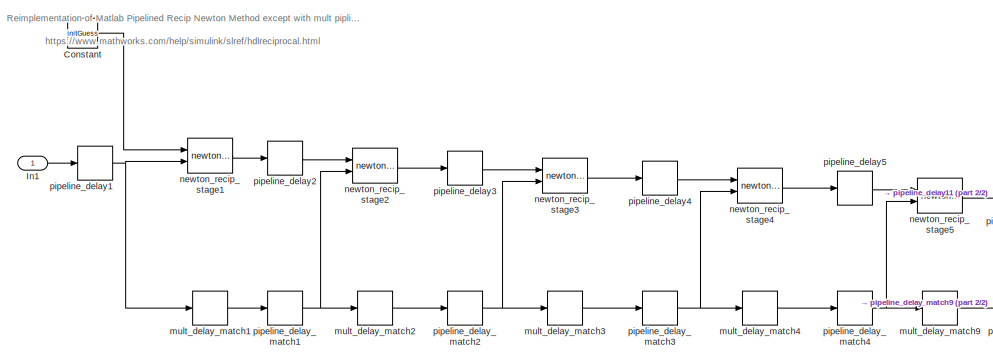
[diagram: recip_newton_10stage - part 1/2, left side, full height]
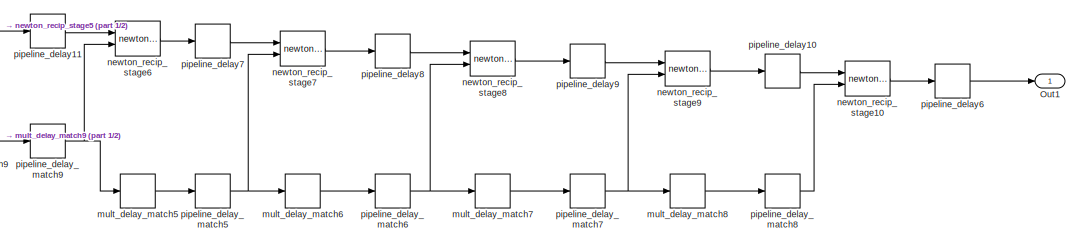
[diagram: recip_newton_10stage - part 2/2, bottom right region]
BLOCK [SubSystem] recip_newton_10stage
  Ports = [1, 1]
  RequestExecContextInheritance = off
BLOCK [Constant] recip_newton_10stage/Constant
  OutDataTypeStr = Inherit: Inherit via back propagation
  Value = initGuess
BLOCK [Inport] recip_newton_10stage/In1
BLOCK [Outport] recip_newton_10stage/Out1
  VectorParamsAs1DForOutWhenUnconnected = off
BLOCK [Delay] recip_newton_10stage/mult_delay_match1
  DelayLength = mult_pipeline*2
  InputPortMap = u0
  Ports = [1, 1]
BLOCK [Delay] recip_newton_10stage/mult_delay_match2
  DelayLength = mult_pipeline*2
  InputPortMap = u0
  Ports = [1, 1]
BLOCK [Delay] recip_newton_10stage/mult_delay_match3
  DelayLength = mult_pipeline*2
  InputPortMap = u0
  Ports = [1, 1]
BLOCK [Delay] recip_newton_10stage/mult_delay_match4
  DelayLength = mult_pipeline*2
  InputPortMap = u0
  Ports = [1, 1]
BLOCK [Delay] recip_newton_10stage/mult_delay_match5
  DelayLength = mult_pipeline*2
  InputPortMap = u0
  Ports = [1, 1]
BLOCK [Delay] recip_newton_10stage/mult_delay_match6
  DelayLength = mult_pipeline*2
  InputPortMap = u0
  Ports = [1, 1]
BLOCK [Delay] recip_newton_10stage/mult_delay_match7
  DelayLength = mult_pipeline*2
  InputPortMap = u0
  Ports = [1, 1]
BLOCK [Delay] recip_newton_10stage/mult_delay_match8
  DelayLength = mult_pipeline*2
  InputPortMap = u0
  Ports = [1, 1]
BLOCK [Delay] recip_newton_10stage/mult_delay_match9
  DelayLength = mult_pipeline*2
  InputPortMap = u0
  Ports = [1, 1]
BLOCK [Reference] recip_newton_10stage/newton_recip_stage1  REF=$bdroot/newton_recip_stage
  Ports = [2, 1]
  SourceBlock = $bdroot/newton_recip_stage
  SourceType = SubSystem
BLOCK [Reference] recip_newton_10stage/newton_recip_stage10  REF=$bdroot/newton_recip_stage
  Ports = [2, 1]
  SourceBlock = $bdroot/newton_recip_stage
  SourceType = SubSystem
BLOCK [Reference] recip_newton_10stage/newton_recip_stage2  REF=$bdroot/newton_recip_stage
  Ports = [2, 1]
  SourceBlock = $bdroot/newton_recip_stage
  SourceType = SubSystem
BLOCK [Reference] recip_newton_10stage/newton_recip_stage3  REF=$bdroot/newton_recip_stage
  Ports = [2, 1]
  SourceBlock = $bdroot/newton_recip_stage
  SourceType = SubSystem
BLOCK [Reference] recip_newton_10stage/newton_recip_stage4  REF=$bdroot/newton_recip_stage
  Ports = [2, 1]
  SourceBlock = $bdroot/newton_recip_stage
  SourceType = SubSystem
BLOCK [Reference] recip_newton_10stage/newton_recip_stage5  REF=$bdroot/newton_recip_stage
  Ports = [2, 1]
  SourceBlock = $bdroot/newton_recip_stage
  SourceType = SubSystem
BLOCK [Reference] recip_newton_10stage/newton_recip_stage6  REF=$bdroot/newton_recip_stage
  Ports = [2, 1]
  SourceBlock = $bdroot/newton_recip_stage
  SourceType = SubSystem
BLOCK [Reference] recip_newton_10stage/newton_recip_stage7  REF=$bdroot/newton_recip_stage
  Ports = [2, 1]
  SourceBlock = $bdroot/newton_recip_stage
  SourceType = SubSystem
BLOCK [Reference] recip_newton_10stage/newton_recip_stage8  REF=$bdroot/newton_recip_stage
  Ports = [2, 1]
  SourceBlock = $bdroot/newton_recip_stage
  SourceType = SubSystem
BLOCK [Reference] recip_newton_10stage/newton_recip_stage9  REF=$bdroot/newton_recip_stage
  Ports = [2, 1]
  SourceBlock = $bdroot/newton_recip_stage
  SourceType = SubSystem
BLOCK [Delay] recip_newton_10stage/pipeline_delay1
  DelayLength = regular_pipeline
  InputPortMap = u0
  Ports = [1, 1]
BLOCK [Delay] recip_newton_10stage/pipeline_delay10
  DelayLength = regular_pipeline
  InputPortMap = u0
  Ports = [1, 1]
BLOCK [Delay] recip_newton_10stage/pipeline_delay11
  DelayLength = regular_pipeline
  InputPortMap = u0
  Ports = [1, 1]
BLOCK [Delay] recip_newton_10stage/pipeline_delay2
  DelayLength = regular_pipeline
  InputPortMap = u0
  Ports = [1, 1]
BLOCK [Delay] recip_newton_10stage/pipeline_delay3
  DelayLength = regular_pipeline
  InputPortMap = u0
  Ports = [1, 1]
BLOCK [Delay] recip_newton_10stage/pipeline_delay4
  DelayLength = regular_pipeline
  InputPortMap = u0
  Ports = [1, 1]
BLOCK [Delay] recip_newton_10stage/pipeline_delay5
  DelayLength = regular_pipeline
  InputPortMap = u0
  Ports = [1, 1]
BLOCK [Delay] recip_newton_10stage/pipeline_delay6
  DelayLength = regular_pipeline
  InputPortMap = u0
  Ports = [1, 1]
BLOCK [Delay] recip_newton_10stage/pipeline_delay7
  DelayLength = regular_pipeline
  InputPortMap = u0
  Ports = [1, 1]
BLOCK [Delay] recip_newton_10stage/pipeline_delay8
  DelayLength = regular_pipeline
  InputPortMap = u0
  Ports = [1, 1]
BLOCK [Delay] recip_newton_10stage/pipeline_delay9
  DelayLength = regular_pipeline
  InputPortMap = u0
  Ports = [1, 1]
BLOCK [Delay] recip_newton_10stage/pipeline_delay_match1
  DelayLength = regular_pipeline
  InputPortMap = u0
  Ports = [1, 1]
BLOCK [Delay] recip_newton_10stage/pipeline_delay_match2
  DelayLength = regular_pipeline
  InputPortMap = u0
  Ports = [1, 1]
BLOCK [Delay] recip_newton_10stage/pipeline_delay_match3
  DelayLength = regular_pipeline
  InputPortMap = u0
  Ports = [1, 1]
BLOCK [Delay] recip_newton_10stage/pipeline_delay_match4
  DelayLength = regular_pipeline
  InputPortMap = u0
  Ports = [1, 1]
BLOCK [Delay] recip_newton_10stage/pipeline_delay_match5
  DelayLength = regular_pipeline
  InputPortMap = u0
  Ports = [1, 1]
BLOCK [Delay] recip_newton_10stage/pipeline_delay_match6
  DelayLength = regular_pipeline
  InputPortMap = u0
  Ports = [1, 1]
BLOCK [Delay] recip_newton_10stage/pipeline_delay_match7
  DelayLength = regular_pipeline
  InputPortMap = u0
  Ports = [1, 1]
BLOCK [Delay] recip_newton_10stage/pipeline_delay_match8
  DelayLength = regular_pipeline
  InputPortMap = u0
  Ports = [1, 1]
BLOCK [Delay] recip_newton_10stage/pipeline_delay_match9
  DelayLength = regular_pipeline
  InputPortMap = u0
  Ports = [1, 1]
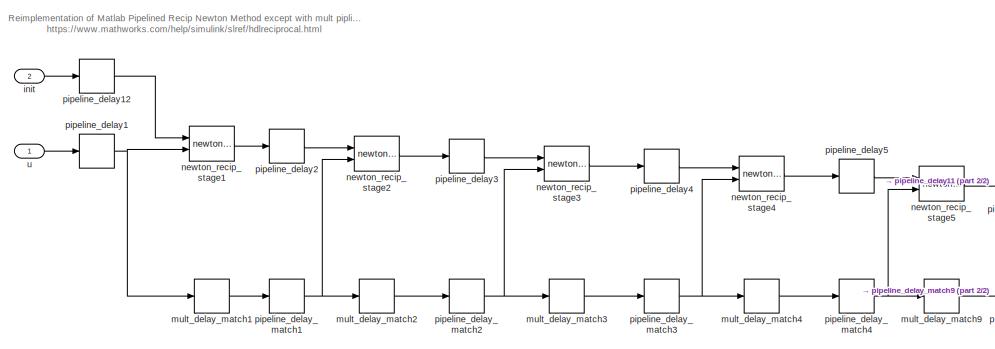
[diagram: recip_newton_10stage_w_init - part 1/2, left side, full height]
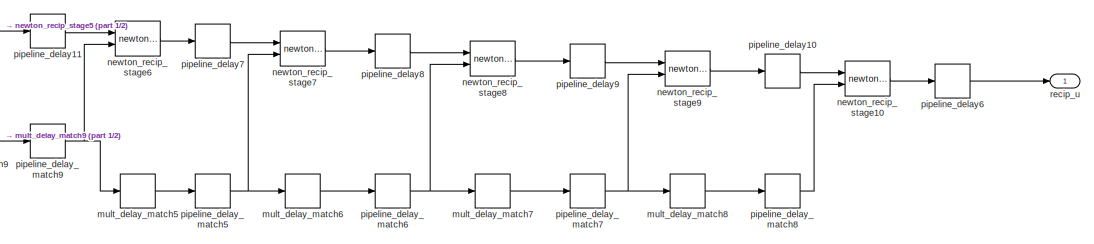
[diagram: recip_newton_10stage_w_init - part 2/2, bottom right region]
BLOCK [SubSystem] recip_newton_10stage_w_init
  Ports = [2, 1]
  RequestExecContextInheritance = off
BLOCK [Inport] recip_newton_10stage_w_init/init
  Port = 2
BLOCK [Delay] recip_newton_10stage_w_init/mult_delay_match1
  DelayLength = mult_pipeline*4
  InputPortMap = u0
  Ports = [1, 1]
BLOCK [Delay] recip_newton_10stage_w_init/mult_delay_match2
  DelayLength = mult_pipeline*4
  InputPortMap = u0
  Ports = [1, 1]
BLOCK [Delay] recip_newton_10stage_w_init/mult_delay_match3
  DelayLength = mult_pipeline*4
  InputPortMap = u0
  Ports = [1, 1]
BLOCK [Delay] recip_newton_10stage_w_init/mult_delay_match4
  DelayLength = mult_pipeline*4
  InputPortMap = u0
  Ports = [1, 1]
BLOCK [Delay] recip_newton_10stage_w_init/mult_delay_match5
  DelayLength = mult_pipeline*4
  InputPortMap = u0
  Ports = [1, 1]
BLOCK [Delay] recip_newton_10stage_w_init/mult_delay_match6
  DelayLength = mult_pipeline*4
  InputPortMap = u0
  Ports = [1, 1]
BLOCK [Delay] recip_newton_10stage_w_init/mult_delay_match7
  DelayLength = mult_pipeline*4
  InputPortMap = u0
  Ports = [1, 1]
BLOCK [Delay] recip_newton_10stage_w_init/mult_delay_match8
  DelayLength = mult_pipeline*4
  InputPortMap = u0
  Ports = [1, 1]
BLOCK [Delay] recip_newton_10stage_w_init/mult_delay_match9
  DelayLength = mult_pipeline*4
  InputPortMap = u0
  Ports = [1, 1]
BLOCK [Reference] recip_newton_10stage_w_init/newton_recip_stage1  REF=$bdroot/newton_recip_stage
  Ports = [2, 1]
  SourceBlock = $bdroot/newton_recip_stage
  SourceType = SubSystem
BLOCK [Reference] recip_newton_10stage_w_init/newton_recip_stage10  REF=$bdroot/newton_recip_stage
  Ports = [2, 1]
  SourceBlock = $bdroot/newton_recip_stage
  SourceType = SubSystem
BLOCK [Reference] recip_newton_10stage_w_init/newton_recip_stage2  REF=$bdroot/newton_recip_stage
  Ports = [2, 1]
  SourceBlock = $bdroot/newton_recip_stage
  SourceType = SubSystem
BLOCK [Reference] recip_newton_10stage_w_init/newton_recip_stage3  REF=$bdroot/newton_recip_stage
  Ports = [2, 1]
  SourceBlock = $bdroot/newton_recip_stage
  SourceType = SubSystem
BLOCK [Reference] recip_newton_10stage_w_init/newton_recip_stage4  REF=$bdroot/newton_recip_stage
  Ports = [2, 1]
  SourceBlock = $bdroot/newton_recip_stage
  SourceType = SubSystem
BLOCK [Reference] recip_newton_10stage_w_init/newton_recip_stage5  REF=$bdroot/newton_recip_stage
  Ports = [2, 1]
  SourceBlock = $bdroot/newton_recip_stage
  SourceType = SubSystem
BLOCK [Reference] recip_newton_10stage_w_init/newton_recip_stage6  REF=$bdroot/newton_recip_stage
  Ports = [2, 1]
  SourceBlock = $bdroot/newton_recip_stage
  SourceType = SubSystem
BLOCK [Reference] recip_newton_10stage_w_init/newton_recip_stage7  REF=$bdroot/newton_recip_stage
  Ports = [2, 1]
  SourceBlock = $bdroot/newton_recip_stage
  SourceType = SubSystem
BLOCK [Reference] recip_newton_10stage_w_init/newton_recip_stage8  REF=$bdroot/newton_recip_stage
  Ports = [2, 1]
  SourceBlock = $bdroot/newton_recip_stage
  SourceType = SubSystem
BLOCK [Reference] recip_newton_10stage_w_init/newton_recip_stage9  REF=$bdroot/newton_recip_stage
  Ports = [2, 1]
  SourceBlock = $bdroot/newton_recip_stage
  SourceType = SubSystem
BLOCK [Delay] recip_newton_10stage_w_init/pipeline_delay1
  DelayLength = regular_pipeline
  InputPortMap = u0
  Ports = [1, 1]
BLOCK [Delay] recip_newton_10stage_w_init/pipeline_delay10
  DelayLength = regular_pipeline
  InputPortMap = u0
  Ports = [1, 1]
BLOCK [Delay] recip_newton_10stage_w_init/pipeline_delay11
  DelayLength = regular_pipeline
  InputPortMap = u0
  Ports = [1, 1]
BLOCK [Delay] recip_newton_10stage_w_init/pipeline_delay12
  DelayLength = regular_pipeline
  InputPortMap = u0
  Ports = [1, 1]
BLOCK [Delay] recip_newton_10stage_w_init/pipeline_delay2
  DelayLength = regular_pipeline
  InputPortMap = u0
  Ports = [1, 1]
BLOCK [Delay] recip_newton_10stage_w_init/pipeline_delay3
  DelayLength = regular_pipeline
  InputPortMap = u0
  Ports = [1, 1]
BLOCK [Delay] recip_newton_10stage_w_init/pipeline_delay4
  DelayLength = regular_pipeline
  InputPortMap = u0
  Ports = [1, 1]
BLOCK [Delay] recip_newton_10stage_w_init/pipeline_delay5
  DelayLength = regular_pipeline
  InputPortMap = u0
  Ports = [1, 1]
BLOCK [Delay] recip_newton_10stage_w_init/pipeline_delay6
  DelayLength = regular_pipeline
  InputPortMap = u0
  Ports = [1, 1]
BLOCK [Delay] recip_newton_10stage_w_init/pipeline_delay7
  DelayLength = regular_pipeline
  InputPortMap = u0
  Ports = [1, 1]
BLOCK [Delay] recip_newton_10stage_w_init/pipeline_delay8
  DelayLength = regular_pipeline
  InputPortMap = u0
  Ports = [1, 1]
BLOCK [Delay] recip_newton_10stage_w_init/pipeline_delay9
  DelayLength = regular_pipeline
  InputPortMap = u0
  Ports = [1, 1]
BLOCK [Delay] recip_newton_10stage_w_init/pipeline_delay_match1
  DelayLength = regular_pipeline
  InputPortMap = u0
  Ports = [1, 1]
BLOCK [Delay] recip_newton_10stage_w_init/pipeline_delay_match2
  DelayLength = regular_pipeline
  InputPortMap = u0
  Ports = [1, 1]
BLOCK [Delay] recip_newton_10stage_w_init/pipeline_delay_match3
  DelayLength = regular_pipeline
  InputPortMap = u0
  Ports = [1, 1]
BLOCK [Delay] recip_newton_10stage_w_init/pipeline_delay_match4
  DelayLength = regular_pipeline
  InputPortMap = u0
  Ports = [1, 1]
BLOCK [Delay] recip_newton_10stage_w_init/pipeline_delay_match5
  DelayLength = regular_pipeline
  InputPortMap = u0
  Ports = [1, 1]
BLOCK [Delay] recip_newton_10stage_w_init/pipeline_delay_match6
  DelayLength = regular_pipeline
  InputPortMap = u0
  Ports = [1, 1]
BLOCK [Delay] recip_newton_10stage_w_init/pipeline_delay_match7
  DelayLength = regular_pipeline
  InputPortMap = u0
  Ports = [1, 1]
BLOCK [Delay] recip_newton_10stage_w_init/pipeline_delay_match8
  DelayLength = regular_pipeline
  InputPortMap = u0
  Ports = [1, 1]
BLOCK [Delay] recip_newton_10stage_w_init/pipeline_delay_match9
  DelayLength = regular_pipeline
  InputPortMap = u0
  Ports = [1, 1]
BLOCK [Outport] recip_newton_10stage_w_init/recip_u
  VectorParamsAs1DForOutWhenUnconnected = off
BLOCK [Inport] recip_newton_10stage_w_init/u
BLOCK [SubSystem] recip_newton_5stage
  Ports = [1, 1]
  RequestExecContextInheritance = off
BLOCK [Constant] recip_newton_5stage/Constant
  OutDataTypeStr = Inherit: Inherit via back propagation
  Value = initGuess
BLOCK [Inport] recip_newton_5stage/In1
BLOCK [Outport] recip_newton_5stage/Out1
  VectorParamsAs1DForOutWhenUnconnected = off
BLOCK [Delay] recip_newton_5stage/mult_delay_match
  DelayLength = mult_pipeline*2
  InputPortMap = u0
  Ports = [1, 1]
BLOCK [Delay] recip_newton_5stage/mult_delay_match1
  DelayLength = mult_pipeline*2
  InputPortMap = u0
  Ports = [1, 1]
BLOCK [Delay] recip_newton_5stage/mult_delay_match2
  DelayLength = mult_pipeline*2
  InputPortMap = u0
  Ports = [1, 1]
BLOCK [Delay] recip_newton_5stage/mult_delay_match3
  DelayLength = mult_pipeline*2
  InputPortMap = u0
  Ports = [1, 1]
BLOCK [Reference] recip_newton_5stage/newton_recip_stage  REF=$bdroot/newton_recip_stage
  Ports = [2, 1]
  SourceBlock = $bdroot/newton_recip_stage
  SourceType = SubSystem
BLOCK [Reference] recip_newton_5stage/newton_recip_stage1  REF=$bdroot/newton_recip_stage
  Ports = [2, 1]
  SourceBlock = $bdroot/newton_recip_stage
  SourceType = SubSystem
BLOCK [Reference] recip_newton_5stage/newton_recip_stage2  REF=$bdroot/newton_recip_stage
  Ports = [2, 1]
  SourceBlock = $bdroot/newton_recip_stage
  SourceType = SubSystem
BLOCK [Reference] recip_newton_5stage/newton_recip_stage3  REF=$bdroot/newton_recip_stage
  Ports = [2, 1]
  SourceBlock = $bdroot/newton_recip_stage
  SourceType = SubSystem
BLOCK [Reference] recip_newton_5stage/newton_recip_stage4  REF=$bdroot/newton_recip_stage
  Ports = [2, 1]
  SourceBlock = $bdroot/newton_recip_stage
  SourceType = SubSystem
BLOCK [Delay] recip_newton_5stage/pipeline_delay
  DelayLength = regular_pipeline
  InputPortMap = u0
  Ports = [1, 1]
BLOCK [Delay] recip_newton_5stage/pipeline_delay1
  DelayLength = regular_pipeline
  InputPortMap = u0
  Ports = [1, 1]
BLOCK [Delay] recip_newton_5stage/pipeline_delay2
  DelayLength = regular_pipeline
  InputPortMap = u0
  Ports = [1, 1]
BLOCK [Delay] recip_newton_5stage/pipeline_delay3
  DelayLength = regular_pipeline
  InputPortMap = u0
  Ports = [1, 1]
BLOCK [Delay] recip_newton_5stage/pipeline_delay4
  DelayLength = regular_pipeline
  InputPortMap = u0
  Ports = [1, 1]
BLOCK [Delay] recip_newton_5stage/pipeline_delay5
  DelayLength = regular_pipeline
  InputPortMap = u0
  Ports = [1, 1]
BLOCK [Delay] recip_newton_5stage/pipeline_delay_match
  DelayLength = regular_pipeline
  InputPortMap = u0
  Ports = [1, 1]
BLOCK [Delay] recip_newton_5stage/pipeline_delay_match1
  DelayLength = regular_pipeline
  InputPortMap = u0
  Ports = [1, 1]
BLOCK [Delay] recip_newton_5stage/pipeline_delay_match2
  DelayLength = regular_pipeline
  InputPortMap = u0
  Ports = [1, 1]
BLOCK [Delay] recip_newton_5stage/pipeline_delay_match3
  DelayLength = regular_pipeline
  InputPortMap = u0
  Ports = [1, 1]
BLOCK [SubSystem] recip_newton_5stage_w_init
  Ports = [2, 1]
  RequestExecContextInheritance = off
BLOCK [Inport] recip_newton_5stage_w_init/init
  Port = 2
BLOCK [Delay] recip_newton_5stage_w_init/mult_delay_match1
  DelayLength = mult_pipeline*4
  InputPortMap = u0
  Ports = [1, 1]
BLOCK [Delay] recip_newton_5stage_w_init/mult_delay_match2
  DelayLength = mult_pipeline*4
  InputPortMap = u0
  Ports = [1, 1]
BLOCK [Delay] recip_newton_5stage_w_init/mult_delay_match3
  DelayLength = mult_pipeline*4
  InputPortMap = u0
  Ports = [1, 1]
BLOCK [Delay] recip_newton_5stage_w_init/mult_delay_match4
  DelayLength = mult_pipeline*4
  InputPortMap = u0
  Ports = [1, 1]
BLOCK [Reference] recip_newton_5stage_w_init/newton_recip_stage1  REF=$bdroot/newton_recip_stage
  Ports = [2, 1]
  SourceBlock = $bdroot/newton_recip_stage
  SourceType = SubSystem
BLOCK [Reference] recip_newton_5stage_w_init/newton_recip_stage2  REF=$bdroot/newton_recip_stage
  Ports = [2, 1]
  SourceBlock = $bdroot/newton_recip_stage
  SourceType = SubSystem
BLOCK [Reference] recip_newton_5stage_w_init/newton_recip_stage3  REF=$bdroot/newton_recip_stage
  Ports = [2, 1]
  SourceBlock = $bdroot/newton_recip_stage
  SourceType = SubSystem
BLOCK [Reference] recip_newton_5stage_w_init/newton_recip_stage4  REF=$bdroot/newton_recip_stage
  Ports = [2, 1]
  SourceBlock = $bdroot/newton_recip_stage
  SourceType = SubSystem
BLOCK [Reference] recip_newton_5stage_w_init/newton_recip_stage5  REF=$bdroot/newton_recip_stage
  Ports = [2, 1]
  SourceBlock = $bdroot/newton_recip_stage
  SourceType = SubSystem
BLOCK [Delay] recip_newton_5stage_w_init/pipeline_delay1
  DelayLength = regular_pipeline
  InputPortMap = u0
  Ports = [1, 1]
BLOCK [Delay] recip_newton_5stage_w_init/pipeline_delay2
  DelayLength = regular_pipeline
  InputPortMap = u0
  Ports = [1, 1]
BLOCK [Delay] recip_newton_5stage_w_init/pipeline_delay3
  DelayLength = regular_pipeline
  InputPortMap = u0
  Ports = [1, 1]
BLOCK [Delay] recip_newton_5stage_w_init/pipeline_delay4
  DelayLength = regular_pipeline
  InputPortMap = u0
  Ports = [1, 1]
BLOCK [Delay] recip_newton_5stage_w_init/pipeline_delay5
  DelayLength = regular_pipeline
  InputPortMap = u0
  Ports = [1, 1]
BLOCK [Delay] recip_newton_5stage_w_init/pipeline_delay6
  DelayLength = regular_pipeline
  InputPortMap = u0
  Ports = [1, 1]
BLOCK [Delay] recip_newton_5stage_w_init/pipeline_delay7
  DelayLength = regular_pipeline
  InputPortMap = u0
  Ports = [1, 1]
BLOCK [Delay] recip_newton_5stage_w_init/pipeline_delay_match1
  DelayLength = regular_pipeline
  InputPortMap = u0
  Ports = [1, 1]
BLOCK [Delay] recip_newton_5stage_w_init/pipeline_delay_match2
  DelayLength = regular_pipeline
  InputPortMap = u0
  Ports = [1, 1]
BLOCK [Delay] recip_newton_5stage_w_init/pipeline_delay_match3
  DelayLength = regular_pipeline
  InputPortMap = u0
  Ports = [1, 1]
BLOCK [Delay] recip_newton_5stage_w_init/pipeline_delay_match4
  DelayLength = regular_pipeline
  InputPortMap = u0
  Ports = [1, 1]
BLOCK [Outport] recip_newton_5stage_w_init/recip_u
  VectorParamsAs1DForOutWhenUnconnected = off
BLOCK [Inport] recip_newton_5stage_w_init/u
BLOCK [SubSystem] saw_shift
  Ports = [1, 1]
  RequestExecContextInheritance = off
BLOCK [Constant] saw_shift/Constant3
  OutDataTypeStr = Inherit: Inherit via back propagation
  SampleTime = -1
  Value = 0.5
BLOCK [DataTypeConversion] saw_shift/Data Type Conversion
  OutDataTypeStr = int8
  RndMeth = Floor
  SaturateOnIntegerOverflow = off
BLOCK [DataTypeConversion] saw_shift/Data Type Conversion1
  RndMeth = Floor
  SaturateOnIntegerOverflow = off
BLOCK [Inport] saw_shift/In1
BLOCK [Outport] saw_shift/Out1
  VectorParamsAs1DForOutWhenUnconnected = off
BLOCK [Sum] saw_shift/Sub
  IconShape = rectangular
  Inputs = +-
  Ports = [2, 1]
BLOCK [Sum] saw_shift/Sub1
  IconShape = rectangular
  Inputs = +-
  Ports = [2, 1]
BLOCK [Sum] saw_shift/Sub2
  IconShape = rectangular
  Inputs = +-
  Ports = [2, 1]
BLOCK [SubSystem] spread_delays4
  Ports = [1, 4]
  RequestExecContextInheritance = off
BLOCK [DownSample] spread_delays4/Downsample4
  N = 4
  RateOptions = Allow multirate processing
  UserDataPersistent = on
BLOCK [DownSample] spread_delays4/Downsample5
  N = 4
  RateOptions = Allow multirate processing
  UserDataPersistent = on
  phase = 3
BLOCK [DownSample] spread_delays4/Downsample6
  N = 4
  RateOptions = Allow multirate processing
  UserDataPersistent = on
  phase = 2
BLOCK [DownSample] spread_delays4/Downsample7
  N = 4
  RateOptions = Allow multirate processing
  UserDataPersistent = on
  phase = 1
BLOCK [Outport] spread_delays4/delay_0
  Port = 4
  VectorParamsAs1DForOutWhenUnconnected = off
BLOCK [Outport] spread_delays4/delay_1
  Port = 3
  VectorParamsAs1DForOutWhenUnconnected = off
BLOCK [Outport] spread_delays4/delay_2
  Port = 2
  VectorParamsAs1DForOutWhenUnconnected = off
BLOCK [Outport] spread_delays4/delay_3
  VectorParamsAs1DForOutWhenUnconnected = off
BLOCK [Inport] spread_delays4/symbol
  NameLocation = right
BLOCK [SubSystem] tapped_delay4 
  Ports = [1, 4]
  RequestExecContextInheritance = off
BLOCK [Delay] tapped_delay4 /Delay
  DelayLength = 1
  InitialCondition = 0
  InputPortMap = u0
  Ports = [1, 1]
BLOCK [Delay] tapped_delay4 /Delay1
  DelayLength = 1
  InitialCondition = 0
  InputPortMap = u0
  Ports = [1, 1]
BLOCK [Delay] tapped_delay4 /Delay2
  DelayLength = 1
  InitialCondition = 0
  InputPortMap = u0
  Ports = [1, 1]
BLOCK [Outport] tapped_delay4 /delay_0
  Port = 4
  VectorParamsAs1DForOutWhenUnconnected = off
BLOCK [Outport] tapped_delay4 /delay_1
  Port = 3
  VectorParamsAs1DForOutWhenUnconnected = off
BLOCK [Outport] tapped_delay4 /delay_2
  Port = 2
  VectorParamsAs1DForOutWhenUnconnected = off
BLOCK [Outport] tapped_delay4 /delay_3
  VectorParamsAs1DForOutWhenUnconnected = off
BLOCK [Inport] tapped_delay4 /symbol
  NameLocation = right
ANNOTATION (root): 3 pipeline stages for dsp48e1 with multiply 2 pipeline stages without multiply
ANNOTATION average_filter: Clever Arch of an Averaging Filter I saw in A Split MAC Approach for SDR Platforms by Paolo Di Francesco, S´eamas McGettrick, Uchenna K. Anyanwu, James C. O’Sullivan, Allen B. MacKenzie, and Luiz A. DaSilva. This requires a shift register, 1 mult, and 2 adds (3 if you count the negation). Downside is unpipelined loopback (standard IIR problem)
ANNOTATION bound_atan: Bound Protection
ANNOTATION complex_magnitude_sq_preamble: This magnitude square takes the sign of the real axes. This matches the post demod correlation logic
ANNOTATION frac_delay_farrow_N-2_M-2: Based on Digital Communication Recievers by Meyr pg 515, 521-522
ANNOTATION frac_delay_farrow_N-2_M-3: Based on Digital Communication Receivers by Meyr pg 515, 521-522
ANNOTATION frac_delay_farrow_N-2_M-3_extState: Based on Digital Communication Receivers by Meyr pg 515, 521-522
ANNOTATION frac_delay_farrow_N-2_M-3_pipelined: Based on Digital Communication Receivers by Meyr pg 515, 521-522
ANNOTATION frac_delay_farrow_N-2_M-3_pipelined: Delays contained in FIR
ANNOTATION nda_4x_time_err: Design from Digital Communication Recievers by Meyr. pg 291
ANNOTATION nda_4x_time_err_enable: Design from Digital Communication Recievers by Meyr. pg 291, 529
ANNOTATION nda_4x_time_err_enable/phase_est: Complex magnitudes replicated due to pipeline register. Created some problems with sample phase when before tapped delay.
ANNOTATION nda_4x_time_err_enable/phase_est/timing_rec_sym_rate_enb: FIR's specify delays before multiplies
ANNOTATION newton_recip_stage: Reimplementation of Matlab Pipelined Recip Newton Method except with mult piplining https://www.mathworks.com/help/simulink/slref/hdlreciprocal.html
ANNOTATION recip_newton_10stage: Reimplementation of Matlab Pipelined Recip Newton Method except with mult piplining https://www.mathworks.com/help/simulink/slref/hdlreciprocal.html
ANNOTATION recip_newton_10stage_w_init: Reimplementation of Matlab Pipelined Recip Newton Method except with mult piplining https://www.mathworks.com/help/simulink/slref/hdlreciprocal.html
ANNOTATION recip_newton_5stage: Reimplementation of Matlab Pipelined Recip Newton Method except with mult piplining https://www.mathworks.com/help/simulink/slref/hdlreciprocal.html
ANNOTATION recip_newton_5stage_w_init: Reimplementation of Matlab Pipelined Recip Newton Method except with mult piplining https://www.mathworks.com/help/simulink/slref/hdlreciprocal.html
LINE Golay Correlator 32/GolayCoralatorBase_fp1:1 -> Golay Correlator 32/pipeline_delay2:1
LINE Golay Correlator 32/GolayCoralatorBase_fp1:2 -> Golay Correlator 32/pipeline_delay3:1
LINE Golay Correlator 32/GolayCoralatorBase_fp2:1 -> Golay Correlator 32/pipeline_delay4:1
LINE Golay Correlator 32/GolayCoralatorBase_fp2:2 -> Golay Correlator 32/pipeline_delay5:1
LINE Golay Correlator 32/GolayCoralatorBase_fp3:1 -> Golay Correlator 32/pipeline_delay6:1
LINE Golay Correlator 32/GolayCoralatorBase_fp3:2 -> Golay Correlator 32/pipeline_delay7:1
LINE Golay Correlator 32/GolayCoralatorBase_fp4:1 -> Golay Correlator 32/pipeline_delay8:1
LINE Golay Correlator 32/GolayCoralatorBase_fp4:2 -> Golay Correlator 32/pipeline_delay9:1
LINE Golay Correlator 32/GolayCoralatorBase_fp:1 -> Golay Correlator 32/pipeline_delay:1
LINE Golay Correlator 32/GolayCoralatorBase_fp:2 -> Golay Correlator 32/pipeline_delay1:1
NET Golay Correlator 32/In:1 -> Golay Correlator 32/GolayCoralatorBase_fp:1, Golay Correlator 32/GolayCoralatorBase_fp:2
LINE Golay Correlator 32/pipeline_delay1:1 -> Golay Correlator 32/GolayCoralatorBase_fp1:2
LINE Golay Correlator 32/pipeline_delay2:1 -> Golay Correlator 32/GolayCoralatorBase_fp2:1
LINE Golay Correlator 32/pipeline_delay3:1 -> Golay Correlator 32/GolayCoralatorBase_fp2:2
LINE Golay Correlator 32/pipeline_delay4:1 -> Golay Correlator 32/GolayCoralatorBase_fp3:1
LINE Golay Correlator 32/pipeline_delay5:1 -> Golay Correlator 32/GolayCoralatorBase_fp3:2
LINE Golay Correlator 32/pipeline_delay6:1 -> Golay Correlator 32/GolayCoralatorBase_fp4:1
LINE Golay Correlator 32/pipeline_delay7:1 -> Golay Correlator 32/GolayCoralatorBase_fp4:2
LINE Golay Correlator 32/pipeline_delay8:1 -> Golay Correlator 32/Ca:1
LINE Golay Correlator 32/pipeline_delay9:1 -> Golay Correlator 32/Cb:1
LINE Golay Correlator 32/pipeline_delay:1 -> Golay Correlator 32/GolayCoralatorBase_fp1:1
LINE Negative Binary Crossing/Delay:1 -> Negative Binary Crossing/Logical Operator:2
NET Negative Binary Crossing/In:1 -> Negative Binary Crossing/Delay:1, Negative Binary Crossing/Logical Operator1:1
LINE Negative Binary Crossing/Logical Operator1:1 -> Negative Binary Crossing/Logical Operator:1
LINE Negative Binary Crossing/Logical Operator:1 -> Negative Binary Crossing/Out:1
LINE Negative Crossing/Compare To Constant1:1 -> Negative Crossing/Delay:1
LINE Negative Crossing/Compare To Constant:1 -> Negative Crossing/Logical Operator:1
LINE Negative Crossing/Delay:1 -> Negative Crossing/Logical Operator:2
NET Negative Crossing/In:1 -> Negative Crossing/Compare To Constant1:1, Negative Crossing/Compare To Constant:1
LINE Negative Crossing/Logical Operator:1 -> Negative Crossing/Out:1
LINE Positive Binary Crossing/Delay:1 -> Positive Binary Crossing/Logical Operator1:1
NET Positive Binary Crossing/In:1 -> Positive Binary Crossing/Delay:1, Positive Binary Crossing/Logical Operator:1
LINE Positive Binary Crossing/Logical Operator1:1 -> Positive Binary Crossing/Logical Operator:2
LINE Positive Binary Crossing/Logical Operator:1 -> Positive Binary Crossing/Out:1
LINE Positive Crossing/Compare To Constant1:1 -> Positive Crossing/Delay:1
LINE Positive Crossing/Compare To Constant:1 -> Positive Crossing/Logical Operator:1
LINE Positive Crossing/Delay:1 -> Positive Crossing/Logical Operator:2
NET Positive Crossing/In:1 -> Positive Crossing/Compare To Constant1:1, Positive Crossing/Compare To Constant:1
LINE Positive Crossing/Logical Operator:1 -> Positive Crossing/Out:1
LINE atan2/Add:1 -> atan2/Switch1:1
LINE atan2/Compare To Constant1:1 -> atan2/pipeline_delay_match1:1
LINE atan2/Compare To Constant2:1 -> atan2/pipeline_delay_match:1
NET atan2/Constant:1 -> atan2/Add:2, atan2/Sub:1
LINE atan2/Product5:1 -> atan2/mult_delay1:1
LINE atan2/Sub:1 -> atan2/Switch1:3
LINE atan2/Switch1:1 -> atan2/Switch8:3
LINE atan2/Switch8:1 -> atan2/Out1:1
LINE atan2/bound_atan:1 -> atan2/pipeline_delay:1
NET atan2/imag_y:1 -> atan2/Compare To Constant2:1, atan2/mult_delay_match:1
LINE atan2/inv Lookup Table:1 -> atan2/pipeline_delay2:1
LINE atan2/mult_delay1:1 -> atan2/bound_atan:1
LINE atan2/mult_delay:1 -> atan2/inv Lookup Table:1
LINE atan2/mult_delay_match:1 -> atan2/pipeline_delay1:1
LINE atan2/pipeline_delay1:1 -> atan2/Product5:1
LINE atan2/pipeline_delay2:1 -> atan2/Product5:2
NET atan2/pipeline_delay:1 -> atan2/Add:1, atan2/Sub:2, atan2/Switch8:1
LINE atan2/pipeline_delay_match1:1 -> atan2/Switch8:2
LINE atan2/pipeline_delay_match:1 -> atan2/Switch1:2
NET atan2/real_x:1 -> atan2/Compare To Constant1:1, atan2/mult_delay:1
LINE average_filter/Data Type Conversion:1 -> average_filter/Sum:1
LINE average_filter/Delay1:1 -> average_filter/Sum:2
LINE average_filter/Delay:1 -> average_filter/Sum1:2
LINE average_filter/Gain:1 -> average_filter/pipeline_delay:1
LINE average_filter/In1:1 -> average_filter/Gain:1
NET average_filter/Sum1:1 -> average_filter/Delay1:1, average_filter/Out1:1
LINE average_filter/Sum:1 -> average_filter/Sum1:1
NET average_filter/pipeline_delay:1 -> average_filter/Data Type Conversion:1, average_filter/Delay:1
NET bound_atan/Compare To Constant1:1 -> bound_atan/Logical Operator:1, bound_atan/pipeline_delay_match:1
NET bound_atan/Compare To Constant4:1 -> bound_atan/Logical Operator:2, bound_atan/pipeline_delay_match1:1
LINE bound_atan/Constant11:1 -> bound_atan/Switch8:1
LINE bound_atan/Constant3:1 -> bound_atan/Switch2:1
LINE bound_atan/Constant4:1 -> bound_atan/Switch3:1
NET bound_atan/In1:1 -> bound_atan/Compare To Constant1:1, bound_atan/Compare To Constant4:1, bound_atan/Switch8:3
LINE bound_atan/Logical Operator:1 -> bound_atan/Switch8:2
LINE bound_atan/Switch2:1 -> bound_atan/Switch3:3
LINE bound_atan/Switch3:1 -> bound_atan/Out1:1
LINE bound_atan/Switch8:1 -> bound_atan/pipeline_delay1:1
LINE bound_atan/atan Lookup Table:1 -> bound_atan/pipeline_delay2:1
LINE bound_atan/mult_delay:1 -> bound_atan/atan Lookup Table:1
LINE bound_atan/mult_delay_match1:1 -> bound_atan/Switch3:2
LINE bound_atan/mult_delay_match:1 -> bound_atan/Switch2:2
LINE bound_atan/pipeline_delay1:1 -> bound_atan/mult_delay:1
LINE bound_atan/pipeline_delay2:1 -> bound_atan/Switch2:3
LINE bound_atan/pipeline_delay_match1:1 -> bound_atan/mult_delay_match1:1
LINE bound_atan/pipeline_delay_match:1 -> bound_atan/mult_delay_match:1
LINE complex_conj/Complex to Real-Imag:1 -> complex_conj/Real-Imag to Complex:1
LINE complex_conj/Complex to Real-Imag:2 -> complex_conj/Gain:1
LINE complex_conj/Gain:1 -> complex_conj/Real-Imag to Complex:2
LINE complex_conj/In:1 -> complex_conj/Complex to Real-Imag:1
LINE complex_conj/Real-Imag to Complex:1 -> complex_conj/Out:1
NET complex_magnitude_sq/Complex to Real-Imag3:1 -> complex_magnitude_sq/Data Type Duplicate:1, complex_magnitude_sq/Product:1, complex_magnitude_sq/Product:2
NET complex_magnitude_sq/Complex to Real-Imag3:2 -> complex_magnitude_sq/Data Type Duplicate1:2, complex_magnitude_sq/Product1:1, complex_magnitude_sq/Product1:2
NET complex_magnitude_sq/Data Type Conversion1:1 -> complex_magnitude_sq/Data Type Duplicate1:1, complex_magnitude_sq/Sum7:2
NET complex_magnitude_sq/Data Type Conversion:1 -> complex_magnitude_sq/Data Type Duplicate:2, complex_magnitude_sq/Sum7:1
LINE complex_magnitude_sq/In1:1 -> complex_magnitude_sq/Complex to Real-Imag3:1
LINE complex_magnitude_sq/Product1:1 -> complex_magnitude_sq/mult_delay2:1
LINE complex_magnitude_sq/Product:1 -> complex_magnitude_sq/mult_delay1:1
LINE complex_magnitude_sq/Sum7:1 -> complex_magnitude_sq/pipeline_delay:1
LINE complex_magnitude_sq/mult_delay1:1 -> complex_magnitude_sq/Data Type Conversion:1
LINE complex_magnitude_sq/mult_delay2:1 -> complex_magnitude_sq/Data Type Conversion1:1
LINE complex_magnitude_sq/pipeline_delay:1 -> complex_magnitude_sq/Out1:1
NET complex_magnitude_sq_cfg/Complex to Real-Imag3:1 -> complex_magnitude_sq_cfg/Data Type Duplicate:1, complex_magnitude_sq_cfg/Product:1, complex_magnitude_sq_cfg/Product:2
NET complex_magnitude_sq_cfg/Complex to Real-Imag3:2 -> complex_magnitude_sq_cfg/Data Type Duplicate1:2, complex_magnitude_sq_cfg/Product1:1, complex_magnitude_sq_cfg/Product1:2
NET complex_magnitude_sq_cfg/Data Type Conversion1:1 -> complex_magnitude_sq_cfg/Data Type Duplicate1:1, complex_magnitude_sq_cfg/Sum7:2
NET complex_magnitude_sq_cfg/Data Type Conversion:1 -> complex_magnitude_sq_cfg/Data Type Duplicate:2, complex_magnitude_sq_cfg/Sum7:1
LINE complex_magnitude_sq_cfg/In1:1 -> complex_magnitude_sq_cfg/Complex to Real-Imag3:1
LINE complex_magnitude_sq_cfg/Product1:1 -> complex_magnitude_sq_cfg/mult_delay2:1
LINE complex_magnitude_sq_cfg/Product:1 -> complex_magnitude_sq_cfg/mult_delay1:1
LINE complex_magnitude_sq_cfg/Sum7:1 -> complex_magnitude_sq_cfg/pipeline_delay1:1
LINE complex_magnitude_sq_cfg/mult_delay1:1 -> complex_magnitude_sq_cfg/Data Type Conversion:1
LINE complex_magnitude_sq_cfg/mult_delay2:1 -> complex_magnitude_sq_cfg/Data Type Conversion1:1
LINE complex_magnitude_sq_cfg/pipeline_delay1:1 -> complex_magnitude_sq_cfg/Out1:1
NET complex_magnitude_sq_preamble/Complex to Real-Imag3:1 -> complex_magnitude_sq_preamble/Data Type Duplicate:1, complex_magnitude_sq_preamble/Product:1, complex_magnitude_sq_preamble/Product:2, complex_magnitude_sq_preamble/Switch:2
NET complex_magnitude_sq_preamble/Complex to Real-Imag3:2 -> complex_magnitude_sq_preamble/Data Type Duplicate1:2, complex_magnitude_sq_preamble/Product1:1, complex_magnitude_sq_preamble/Product1:2
LINE complex_magnitude_sq_preamble/Constant1:1 -> complex_magnitude_sq_preamble/Switch:3
LINE complex_magnitude_sq_preamble/Constant:1 -> complex_magnitude_sq_preamble/Switch:1
NET complex_magnitude_sq_preamble/Data Type Conversion1:1 -> complex_magnitude_sq_preamble/Data Type Duplicate1:1, complex_magnitude_sq_preamble/Sum7:2
NET complex_magnitude_sq_preamble/Data Type Conversion2:1 -> complex_magnitude_sq_preamble/Data Type Duplicate2:1, complex_magnitude_sq_preamble/Out1:1
NET complex_magnitude_sq_preamble/Data Type Conversion:1 -> complex_magnitude_sq_preamble/Data Type Duplicate:2, complex_magnitude_sq_preamble/Sum7:1
LINE complex_magnitude_sq_preamble/In1:1 -> complex_magnitude_sq_preamble/Complex to Real-Imag3:1
LINE complex_magnitude_sq_preamble/Product1:1 -> complex_magnitude_sq_preamble/mult_delay2:1
LINE complex_magnitude_sq_preamble/Product2:1 -> complex_magnitude_sq_preamble/mult_delay3:1
LINE complex_magnitude_sq_preamble/Product:1 -> complex_magnitude_sq_preamble/mult_delay1:1
LINE complex_magnitude_sq_preamble/Sum7:1 -> complex_magnitude_sq_preamble/pipeline_delay1:1
LINE complex_magnitude_sq_preamble/Switch:1 -> complex_magnitude_sq_preamble/mult_delay_match:1
LINE complex_magnitude_sq_preamble/mult_delay1:1 -> complex_magnitude_sq_preamble/Data Type Conversion:1
LINE complex_magnitude_sq_preamble/mult_delay2:1 -> complex_magnitude_sq_preamble/Data Type Conversion1:1
LINE complex_magnitude_sq_preamble/mult_delay3:1 -> complex_magnitude_sq_preamble/Data Type Conversion2:1
LINE complex_magnitude_sq_preamble/mult_delay_match:1 -> complex_magnitude_sq_preamble/pipeline_delay_match:1
NET complex_magnitude_sq_preamble/pipeline_delay1:1 -> complex_magnitude_sq_preamble/Data Type Duplicate2:2, complex_magnitude_sq_preamble/Product2:1
LINE complex_magnitude_sq_preamble/pipeline_delay_match:1 -> complex_magnitude_sq_preamble/Product2:2
LINE complex_mult_pipelined/Add1:1 -> complex_mult_pipelined/pipeline_delay1:1
LINE complex_mult_pipelined/Add2:1 -> complex_mult_pipelined/pipeline_delay6:1
NET complex_mult_pipelined/Complex to Real-Imag3:1 -> complex_mult_pipelined/pipelined_mult2:1, complex_mult_pipelined/pipelined_mult:1
NET complex_mult_pipelined/Complex to Real-Imag3:2 -> complex_mult_pipelined/pipelined_mult1:1, complex_mult_pipelined/pipelined_mult3:1
NET complex_mult_pipelined/Complex to Real-Imag4:1 -> complex_mult_pipelined/pipelined_mult3:2, complex_mult_pipelined/pipelined_mult:2
NET complex_mult_pipelined/Complex to Real-Imag4:2 -> complex_mult_pipelined/pipelined_mult1:2, complex_mult_pipelined/pipelined_mult2:2
LINE complex_mult_pipelined/In1:1 -> complex_mult_pipelined/pipeline_delay2:1
LINE complex_mult_pipelined/In2:1 -> complex_mult_pipelined/pipeline_delay3:1
LINE complex_mult_pipelined/Real-Imag to Complex2:1 -> complex_mult_pipelined/Out1:1
LINE complex_mult_pipelined/mult_delay_match3:1 -> complex_mult_pipelined/Add1:1
LINE complex_mult_pipelined/mult_delay_match4:1 -> complex_mult_pipelined/Add2:1
LINE complex_mult_pipelined/mult_delay_match5:1 -> complex_mult_pipelined/Add2:2
LINE complex_mult_pipelined/pipeline_delay1:1 -> complex_mult_pipelined/Real-Imag to Complex2:1
LINE complex_mult_pipelined/pipeline_delay2:1 -> complex_mult_pipelined/Complex to Real-Imag3:1
LINE complex_mult_pipelined/pipeline_delay3:1 -> complex_mult_pipelined/Complex to Real-Imag4:1
LINE complex_mult_pipelined/pipeline_delay6:1 -> complex_mult_pipelined/Real-Imag to Complex2:2
LINE complex_mult_pipelined/pipelined_gain:1 -> complex_mult_pipelined/Add1:2
LINE complex_mult_pipelined/pipelined_mult1:1 -> complex_mult_pipelined/pipelined_gain:1
LINE complex_mult_pipelined/pipelined_mult2:1 -> complex_mult_pipelined/mult_delay_match4:1
LINE complex_mult_pipelined/pipelined_mult3:1 -> complex_mult_pipelined/mult_delay_match5:1
LINE complex_mult_pipelined/pipelined_mult:1 -> complex_mult_pipelined/mult_delay_match3:1
LINE complex_mult_pipelined_cfg/Add1:1 -> complex_mult_pipelined_cfg/pipeline_delay1:1
LINE complex_mult_pipelined_cfg/Add2:1 -> complex_mult_pipelined_cfg/pipeline_delay6:1
NET complex_mult_pipelined_cfg/Complex to Real-Imag3:1 -> complex_mult_pipelined_cfg/pipelined_mult1:1, complex_mult_pipelined_cfg/pipelined_mult3:1
NET complex_mult_pipelined_cfg/Complex to Real-Imag3:2 -> complex_mult_pipelined_cfg/pipelined_mult2:1, complex_mult_pipelined_cfg/pipelined_mult4:1
NET complex_mult_pipelined_cfg/Complex to Real-Imag4:1 -> complex_mult_pipelined_cfg/pipelined_mult1:2, complex_mult_pipelined_cfg/pipelined_mult4:2
NET complex_mult_pipelined_cfg/Complex to Real-Imag4:2 -> complex_mult_pipelined_cfg/pipelined_mult2:2, complex_mult_pipelined_cfg/pipelined_mult3:2
LINE complex_mult_pipelined_cfg/In1:1 -> complex_mult_pipelined_cfg/Complex to Real-Imag3:1
LINE complex_mult_pipelined_cfg/In2:1 -> complex_mult_pipelined_cfg/Complex to Real-Imag4:1
LINE complex_mult_pipelined_cfg/Real-Imag to Complex2:1 -> complex_mult_pipelined_cfg/Out1:1
LINE complex_mult_pipelined_cfg/mult_delay_match3:1 -> complex_mult_pipelined_cfg/Add1:1
LINE complex_mult_pipelined_cfg/mult_delay_match4:1 -> complex_mult_pipelined_cfg/Add2:1
LINE complex_mult_pipelined_cfg/mult_delay_match5:1 -> complex_mult_pipelined_cfg/Add2:2
LINE complex_mult_pipelined_cfg/pipeline_delay1:1 -> complex_mult_pipelined_cfg/Real-Imag to Complex2:1
LINE complex_mult_pipelined_cfg/pipeline_delay6:1 -> complex_mult_pipelined_cfg/Real-Imag to Complex2:2
LINE complex_mult_pipelined_cfg/pipelined_gain1:1 -> complex_mult_pipelined_cfg/Add1:2
LINE complex_mult_pipelined_cfg/pipelined_mult1:1 -> complex_mult_pipelined_cfg/mult_delay_match3:1
LINE complex_mult_pipelined_cfg/pipelined_mult2:1 -> complex_mult_pipelined_cfg/pipelined_gain1:1
LINE complex_mult_pipelined_cfg/pipelined_mult3:1 -> complex_mult_pipelined_cfg/mult_delay_match4:1
LINE complex_mult_pipelined_cfg/pipelined_mult4:1 -> complex_mult_pipelined_cfg/mult_delay_match5:1
LINE frac_delay_farrow_N-2_M-2/Add1:1 -> frac_delay_farrow_N-2_M-2/out:1
LINE frac_delay_farrow_N-2_M-2/Add2:1 -> frac_delay_farrow_N-2_M-2/Product1:1
LINE frac_delay_farrow_N-2_M-2/Discrete FIR Filter1:1 -> frac_delay_farrow_N-2_M-2/Add2:1
LINE frac_delay_farrow_N-2_M-2/Discrete FIR Filter2:1 -> frac_delay_farrow_N-2_M-2/Add1:1
LINE frac_delay_farrow_N-2_M-2/Discrete FIR Filter:1 -> frac_delay_farrow_N-2_M-2/Product5:1
LINE frac_delay_farrow_N-2_M-2/Product1:1 -> frac_delay_farrow_N-2_M-2/Add1:2
LINE frac_delay_farrow_N-2_M-2/Product5:1 -> frac_delay_farrow_N-2_M-2/Add2:2
NET frac_delay_farrow_N-2_M-2/delay:1 -> frac_delay_farrow_N-2_M-2/Product1:2, frac_delay_farrow_N-2_M-2/Product5:2
NET frac_delay_farrow_N-2_M-2/samples:1 -> frac_delay_farrow_N-2_M-2/Discrete FIR Filter1:1, frac_delay_farrow_N-2_M-2/Discrete FIR Filter2:1, frac_delay_farrow_N-2_M-2/Discrete FIR Filter:1
LINE frac_delay_farrow_N-2_M-3/Add1:1 -> frac_delay_farrow_N-2_M-3/Product2:1
LINE frac_delay_farrow_N-2_M-3/Add2:1 -> frac_delay_farrow_N-2_M-3/out:1
LINE frac_delay_farrow_N-2_M-3/Add:1 -> frac_delay_farrow_N-2_M-3/Product1:1
LINE frac_delay_farrow_N-2_M-3/Discrete FIR Filter1:1 -> frac_delay_farrow_N-2_M-3/Add:1
LINE frac_delay_farrow_N-2_M-3/Discrete FIR Filter2:1 -> frac_delay_farrow_N-2_M-3/Add1:1
LINE frac_delay_farrow_N-2_M-3/Discrete FIR Filter3:1 -> frac_delay_farrow_N-2_M-3/Add2:1
LINE frac_delay_farrow_N-2_M-3/Discrete FIR Filter:1 -> frac_delay_farrow_N-2_M-3/Product5:1
LINE frac_delay_farrow_N-2_M-3/Product1:1 -> frac_delay_farrow_N-2_M-3/Add1:2
LINE frac_delay_farrow_N-2_M-3/Product2:1 -> frac_delay_farrow_N-2_M-3/Add2:2
LINE frac_delay_farrow_N-2_M-3/Product5:1 -> frac_delay_farrow_N-2_M-3/Add:2
NET frac_delay_farrow_N-2_M-3/delay:1 -> frac_delay_farrow_N-2_M-3/Product1:2, frac_delay_farrow_N-2_M-3/Product2:2, frac_delay_farrow_N-2_M-3/Product5:2
NET frac_delay_farrow_N-2_M-3/samples:1 -> frac_delay_farrow_N-2_M-3/Discrete FIR Filter1:1, frac_delay_farrow_N-2_M-3/Discrete FIR Filter2:1, frac_delay_farrow_N-2_M-3/Discrete FIR Filter3:1, frac_delay_farrow_N-2_M-3/Discrete FIR Filter:1
LINE frac_delay_farrow_N-2_M-3_extState/Add1:1 -> frac_delay_farrow_N-2_M-3_extState/Product2:1
LINE frac_delay_farrow_N-2_M-3_extState/Add2:1 -> frac_delay_farrow_N-2_M-3_extState/out:1
LINE frac_delay_farrow_N-2_M-3_extState/Add:1 -> frac_delay_farrow_N-2_M-3_extState/Product1:1
NET frac_delay_farrow_N-2_M-3_extState/Complex to Real-Imag:1 -> frac_delay_farrow_N-2_M-3_extState/Dot Product1:1, frac_delay_farrow_N-2_M-3_extState/Dot Product2:1, frac_delay_farrow_N-2_M-3_extState/Dot Product3:1, frac_delay_farrow_N-2_M-3_extState/Dot Product:1
NET frac_delay_farrow_N-2_M-3_extState/Complex to Real-Imag:2 -> frac_delay_farrow_N-2_M-3_extState/Dot Product4:1, frac_delay_farrow_N-2_M-3_extState/Dot Product5:1, frac_delay_farrow_N-2_M-3_extState/Dot Product6:1, frac_delay_farrow_N-2_M-3_extState/Dot Product7:1
NET frac_delay_farrow_N-2_M-3_extState/Constant1:1 -> frac_delay_farrow_N-2_M-3_extState/Dot Product1:2, frac_delay_farrow_N-2_M-3_extState/Dot Product5:2
NET frac_delay_farrow_N-2_M-3_extState/Constant2:1 -> frac_delay_farrow_N-2_M-3_extState/Dot Product2:2, frac_delay_farrow_N-2_M-3_extState/Dot Product6:2
NET frac_delay_farrow_N-2_M-3_extState/Constant3:1 -> frac_delay_farrow_N-2_M-3_extState/Dot Product3:2, frac_delay_farrow_N-2_M-3_extState/Dot Product7:2
NET frac_delay_farrow_N-2_M-3_extState/Constant:1 -> frac_delay_farrow_N-2_M-3_extState/Dot Product4:2, frac_delay_farrow_N-2_M-3_extState/Dot Product:2
LINE frac_delay_farrow_N-2_M-3_extState/Dot Product1:1 -> frac_delay_farrow_N-2_M-3_extState/Real-Imag to Complex1:1
LINE frac_delay_farrow_N-2_M-3_extState/Dot Product2:1 -> frac_delay_farrow_N-2_M-3_extState/Real-Imag to Complex2:1
LINE frac_delay_farrow_N-2_M-3_extState/Dot Product3:1 -> frac_delay_farrow_N-2_M-3_extState/Real-Imag to Complex3:1
LINE frac_delay_farrow_N-2_M-3_extState/Dot Product4:1 -> frac_delay_farrow_N-2_M-3_extState/Real-Imag to Complex:2
LINE frac_delay_farrow_N-2_M-3_extState/Dot Product5:1 -> frac_delay_farrow_N-2_M-3_extState/Real-Imag to Complex1:2
LINE frac_delay_farrow_N-2_M-3_extState/Dot Product6:1 -> frac_delay_farrow_N-2_M-3_extState/Real-Imag to Complex2:2
LINE frac_delay_farrow_N-2_M-3_extState/Dot Product7:1 -> frac_delay_farrow_N-2_M-3_extState/Real-Imag to Complex3:2
LINE frac_delay_farrow_N-2_M-3_extState/Dot Product:1 -> frac_delay_farrow_N-2_M-3_extState/Real-Imag to Complex:1
LINE frac_delay_farrow_N-2_M-3_extState/Product1:1 -> frac_delay_farrow_N-2_M-3_extState/Add1:2
LINE frac_delay_farrow_N-2_M-3_extState/Product2:1 -> frac_delay_farrow_N-2_M-3_extState/Add2:2
LINE frac_delay_farrow_N-2_M-3_extState/Product5:1 -> frac_delay_farrow_N-2_M-3_extState/Add:2
LINE frac_delay_farrow_N-2_M-3_extState/Real-Imag to Complex1:1 -> frac_delay_farrow_N-2_M-3_extState/Add:1
LINE frac_delay_farrow_N-2_M-3_extState/Real-Imag to Complex2:1 -> frac_delay_farrow_N-2_M-3_extState/Add1:1
LINE frac_delay_farrow_N-2_M-3_extState/Real-Imag to Complex3:1 -> frac_delay_farrow_N-2_M-3_extState/Add2:1
LINE frac_delay_farrow_N-2_M-3_extState/Real-Imag to Complex:1 -> frac_delay_farrow_N-2_M-3_extState/Product5:1
NET frac_delay_farrow_N-2_M-3_extState/fracDelay:1 -> frac_delay_farrow_N-2_M-3_extState/Product1:2, frac_delay_farrow_N-2_M-3_extState/Product2:2, frac_delay_farrow_N-2_M-3_extState/Product5:2
LINE frac_delay_farrow_N-2_M-3_extState/samples:1 -> frac_delay_farrow_N-2_M-3_extState/Complex to Real-Imag:1
LINE frac_delay_farrow_N-2_M-3_pipelined/Add1:1 -> frac_delay_farrow_N-2_M-3_pipelined/Product2:1
LINE frac_delay_farrow_N-2_M-3_pipelined/Add2:1 -> frac_delay_farrow_N-2_M-3_pipelined/out:1
LINE frac_delay_farrow_N-2_M-3_pipelined/Add:1 -> frac_delay_farrow_N-2_M-3_pipelined/Product1:1
LINE frac_delay_farrow_N-2_M-3_pipelined/Discrete FIR Filter1:1 -> frac_delay_farrow_N-2_M-3_pipelined/mult_delay4:1
LINE frac_delay_farrow_N-2_M-3_pipelined/Discrete FIR Filter2:1 -> frac_delay_farrow_N-2_M-3_pipelined/mult_delay5:1
LINE frac_delay_farrow_N-2_M-3_pipelined/Discrete FIR Filter3:1 -> frac_delay_farrow_N-2_M-3_pipelined/mult_delay6:1
LINE frac_delay_farrow_N-2_M-3_pipelined/Discrete FIR Filter:1 -> frac_delay_farrow_N-2_M-3_pipelined/mult_delay3:1
LINE frac_delay_farrow_N-2_M-3_pipelined/Product1:1 -> frac_delay_farrow_N-2_M-3_pipelined/mult_delay1:1
LINE frac_delay_farrow_N-2_M-3_pipelined/Product2:1 -> frac_delay_farrow_N-2_M-3_pipelined/mult_delay2:1
LINE frac_delay_farrow_N-2_M-3_pipelined/Product5:1 -> frac_delay_farrow_N-2_M-3_pipelined/mult_delay:1
NET frac_delay_farrow_N-2_M-3_pipelined/delay:1 -> frac_delay_farrow_N-2_M-3_pipelined/Product5:2, frac_delay_farrow_N-2_M-3_pipelined/mult_delay_match:1
LINE frac_delay_farrow_N-2_M-3_pipelined/mult_delay1:1 -> frac_delay_farrow_N-2_M-3_pipelined/Add1:2
LINE frac_delay_farrow_N-2_M-3_pipelined/mult_delay2:1 -> frac_delay_farrow_N-2_M-3_pipelined/Add2:2
LINE frac_delay_farrow_N-2_M-3_pipelined/mult_delay3:1 -> frac_delay_farrow_N-2_M-3_pipelined/Product5:1
LINE frac_delay_farrow_N-2_M-3_pipelined/mult_delay4:1 -> frac_delay_farrow_N-2_M-3_pipelined/mult_delay_match2:1
LINE frac_delay_farrow_N-2_M-3_pipelined/mult_delay5:1 -> frac_delay_farrow_N-2_M-3_pipelined/mult_delay_match3:1
LINE frac_delay_farrow_N-2_M-3_pipelined/mult_delay6:1 -> frac_delay_farrow_N-2_M-3_pipelined/mult_delay_match4:1
LINE frac_delay_farrow_N-2_M-3_pipelined/mult_delay:1 -> frac_delay_farrow_N-2_M-3_pipelined/Add:2
LINE frac_delay_farrow_N-2_M-3_pipelined/mult_delay_match1:1 -> frac_delay_farrow_N-2_M-3_pipelined/Product2:2
LINE frac_delay_farrow_N-2_M-3_pipelined/mult_delay_match2:1 -> frac_delay_farrow_N-2_M-3_pipelined/Add:1
LINE frac_delay_farrow_N-2_M-3_pipelined/mult_delay_match3:1 -> frac_delay_farrow_N-2_M-3_pipelined/Add1:1
LINE frac_delay_farrow_N-2_M-3_pipelined/mult_delay_match4:1 -> frac_delay_farrow_N-2_M-3_pipelined/Add2:1
NET frac_delay_farrow_N-2_M-3_pipelined/mult_delay_match:1 -> frac_delay_farrow_N-2_M-3_pipelined/Product1:2, frac_delay_farrow_N-2_M-3_pipelined/mult_delay_match1:1
NET frac_delay_farrow_N-2_M-3_pipelined/samples:1 -> frac_delay_farrow_N-2_M-3_pipelined/Discrete FIR Filter1:1, frac_delay_farrow_N-2_M-3_pipelined/Discrete FIR Filter2:1, frac_delay_farrow_N-2_M-3_pipelined/Discrete FIR Filter3:1, frac_delay_farrow_N-2_M-3_pipelined/Discrete FIR Filter:1
LINE gardener/Add:1 -> gardener/Out1:1
LINE gardener/Complex to Real-Imag1:1 -> gardener/Product:2
LINE gardener/Complex to Real-Imag1:2 -> gardener/Product1:1
LINE gardener/Complex to Real-Imag2:1 -> gardener/sub:2
LINE gardener/Complex to Real-Imag2:2 -> gardener/sub1:2
LINE gardener/Complex to Real-Imag:1 -> gardener/sub:1
LINE gardener/Complex to Real-Imag:2 -> gardener/sub1:1
LINE gardener/In1:1 -> gardener/gardener_spread:1
LINE gardener/Product1:1 -> gardener/Add:2
LINE gardener/Product:1 -> gardener/Add:1
LINE gardener/gardener_spread:1 -> gardener/Complex to Real-Imag:1
LINE gardener/gardener_spread:2 -> gardener/Complex to Real-Imag1:1
LINE gardener/gardener_spread:3 -> gardener/Complex to Real-Imag2:1
LINE gardener/sub1:1 -> gardener/Product1:2
LINE gardener/sub:1 -> gardener/Product:1
LINE gardener_spread/Delay:1 -> gardener_spread/Downsample3:1
LINE gardener_spread/Downsample3:1 -> gardener_spread/sample_t_2:1
LINE gardener_spread/Downsample4:1 -> gardener_spread/sample_t0:1
LINE gardener_spread/Downsample6:1 -> gardener_spread/sample_t_1_2:1
NET gardener_spread/symbol1:1 -> gardener_spread/Delay:1, gardener_spread/Downsample4:1, gardener_spread/Downsample6:1
LINE lms/Data Type Conversion1:1 -> lms/pipeline_delay1:1
LINE lms/Data Type Conversion2:1 -> lms/out:1
LINE lms/Data Type Conversion:1 -> lms/Delay3:1
LINE lms/Delay3:1 -> lms/pipeline_delay4:1
NET lms/Discrete FIR Filter:1 -> lms/Data Type Conversion2:1, lms/Sum:2
LINE lms/Product1:1 -> lms/Sum1:2
LINE lms/Product:1 -> lms/Product1:2
LINE lms/Sum1:1 -> lms/Switch:1
NET lms/Sum:1 -> lms/Product:1, lms/err:1
LINE lms/Switch:1 -> lms/Unit Delay Resettable:1
LINE lms/Tapped Delay:1 -> lms/Vector Concatenate:2
NET lms/Unit Delay Resettable:1 -> lms/Discrete FIR Filter:2, lms/Display:1, lms/Sum1:1, lms/Switch:3, lms/weights:1
LINE lms/Vector Concatenate:1 -> lms/Product1:1
LINE lms/adapt:1 -> lms/pipeline_delay2:1
NET lms/complex_conj:1 -> lms/Tapped Delay:1, lms/Vector Concatenate:1
LINE lms/expected:1 -> lms/Data Type Conversion:1
LINE lms/in:1 -> lms/Data Type Conversion1:1
NET lms/pipeline_delay1:1 -> lms/Discrete FIR Filter:1, lms/complex_conj:1
LINE lms/pipeline_delay2:1 -> lms/Switch:2
LINE lms/pipeline_delay3:1 -> lms/Product:2
LINE lms/pipeline_delay4:1 -> lms/Sum:1
LINE lms/reset:1 -> lms/Unit Delay Resettable:2
LINE lms/step:1 -> lms/pipeline_delay3:1
LINE nda_4x_time_err/Constant1:1 -> nda_4x_time_err/Product:2
LINE nda_4x_time_err/Delay1:1 -> nda_4x_time_err/atan2:1
LINE nda_4x_time_err/Delay3:1 -> nda_4x_time_err/atan2:2
LINE nda_4x_time_err/Delay6:1 -> nda_4x_time_err/Product:1
LINE nda_4x_time_err/Discrete Transfer Fcn1:1 -> nda_4x_time_err/Delay3:1
LINE nda_4x_time_err/Discrete Transfer Fcn:1 -> nda_4x_time_err/Delay1:1
LINE nda_4x_time_err/In1:1 -> nda_4x_time_err/complex_magnitude_sq:1
LINE nda_4x_time_err/Product:1 -> nda_4x_time_err/Out1:1
LINE nda_4x_time_err/Sub1:1 -> nda_4x_time_err/Discrete Transfer Fcn1:1
LINE nda_4x_time_err/Sub:1 -> nda_4x_time_err/Discrete Transfer Fcn:1
LINE nda_4x_time_err/atan2:1 -> nda_4x_time_err/Delay6:1
LINE nda_4x_time_err/complex_magnitude_sq:1 -> nda_4x_time_err/spread_delays4:1
LINE nda_4x_time_err/spread_delays4:1 -> nda_4x_time_err/Sub:1
LINE nda_4x_time_err/spread_delays4:2 -> nda_4x_time_err/Sub1:1
LINE nda_4x_time_err/spread_delays4:3 -> nda_4x_time_err/Sub:2
LINE nda_4x_time_err/spread_delays4:4 -> nda_4x_time_err/Sub1:2
LINE nda_4x_time_err_enable/enable:1 -> nda_4x_time_err_enable/phase_est:enable
LINE nda_4x_time_err_enable/phase_est/In1:1 -> nda_4x_time_err_enable/phase_est/complex_magnitude_sq3:1
LINE nda_4x_time_err_enable/phase_est/In2:1 -> nda_4x_time_err_enable/phase_est/complex_magnitude_sq2:1
LINE nda_4x_time_err_enable/phase_est/In3:1 -> nda_4x_time_err_enable/phase_est/complex_magnitude_sq1:1
LINE nda_4x_time_err_enable/phase_est/In4:1 -> nda_4x_time_err_enable/phase_est/complex_magnitude_sq0:1
LINE nda_4x_time_err_enable/phase_est/complex_magnitude_sq0:1 -> nda_4x_time_err_enable/phase_est/timing_rec_sym_rate_enb:4
LINE nda_4x_time_err_enable/phase_est/complex_magnitude_sq1:1 -> nda_4x_time_err_enable/phase_est/timing_rec_sym_rate_enb:3
LINE nda_4x_time_err_enable/phase_est/complex_magnitude_sq2:1 -> nda_4x_time_err_enable/phase_est/timing_rec_sym_rate_enb:2
LINE nda_4x_time_err_enable/phase_est/complex_magnitude_sq3:1 -> nda_4x_time_err_enable/phase_est/timing_rec_sym_rate_enb:1
LINE nda_4x_time_err_enable/phase_est/timing_rec_sym_rate_enb/Constant:1 -> nda_4x_time_err_enable/phase_est/timing_rec_sym_rate_enb/Product:2
LINE nda_4x_time_err_enable/phase_est/timing_rec_sym_rate_enb/Discrete FIR Filter1:1 -> nda_4x_time_err_enable/phase_est/timing_rec_sym_rate_enb/mult_delay3:1
LINE nda_4x_time_err_enable/phase_est/timing_rec_sym_rate_enb/Discrete FIR Filter:1 -> nda_4x_time_err_enable/phase_est/timing_rec_sym_rate_enb/mult_delay1:1
LINE nda_4x_time_err_enable/phase_est/timing_rec_sym_rate_enb/Product:1 -> nda_4x_time_err_enable/phase_est/timing_rec_sym_rate_enb/mult_delay2:1
LINE nda_4x_time_err_enable/phase_est/timing_rec_sym_rate_enb/Sub1:1 -> nda_4x_time_err_enable/phase_est/timing_rec_sym_rate_enb/pipeline_delay1:1
LINE nda_4x_time_err_enable/phase_est/timing_rec_sym_rate_enb/Sub:1 -> nda_4x_time_err_enable/phase_est/timing_rec_sym_rate_enb/pipeline_delay:1
LINE nda_4x_time_err_enable/phase_est/timing_rec_sym_rate_enb/atan2:1 -> nda_4x_time_err_enable/phase_est/timing_rec_sym_rate_enb/pipeline_delay2:1
LINE nda_4x_time_err_enable/phase_est/timing_rec_sym_rate_enb/delay0:1 -> nda_4x_time_err_enable/phase_est/timing_rec_sym_rate_enb/Sub1:2
LINE nda_4x_time_err_enable/phase_est/timing_rec_sym_rate_enb/delay1:1 -> nda_4x_time_err_enable/phase_est/timing_rec_sym_rate_enb/Sub:2
LINE nda_4x_time_err_enable/phase_est/timing_rec_sym_rate_enb/delay2:1 -> nda_4x_time_err_enable/phase_est/timing_rec_sym_rate_enb/Sub1:1
LINE nda_4x_time_err_enable/phase_est/timing_rec_sym_rate_enb/delay3:1 -> nda_4x_time_err_enable/phase_est/timing_rec_sym_rate_enb/Sub:1
LINE nda_4x_time_err_enable/phase_est/timing_rec_sym_rate_enb/mult_delay1:1 -> nda_4x_time_err_enable/phase_est/timing_rec_sym_rate_enb/atan2:1
LINE nda_4x_time_err_enable/phase_est/timing_rec_sym_rate_enb/mult_delay2:1 -> nda_4x_time_err_enable/phase_est/timing_rec_sym_rate_enb/err:1
LINE nda_4x_time_err_enable/phase_est/timing_rec_sym_rate_enb/mult_delay3:1 -> nda_4x_time_err_enable/phase_est/timing_rec_sym_rate_enb/atan2:2
LINE nda_4x_time_err_enable/phase_est/timing_rec_sym_rate_enb/pipeline_delay1:1 -> nda_4x_time_err_enable/phase_est/timing_rec_sym_rate_enb/Discrete FIR Filter1:1
LINE nda_4x_time_err_enable/phase_est/timing_rec_sym_rate_enb/pipeline_delay2:1 -> nda_4x_time_err_enable/phase_est/timing_rec_sym_rate_enb/Product:1
LINE nda_4x_time_err_enable/phase_est/timing_rec_sym_rate_enb/pipeline_delay:1 -> nda_4x_time_err_enable/phase_est/timing_rec_sym_rate_enb/Discrete FIR Filter:1
LINE nda_4x_time_err_enable/phase_est/timing_rec_sym_rate_enb:1 -> nda_4x_time_err_enable/phase_est/Out1:1
LINE nda_4x_time_err_enable/phase_est:1 -> nda_4x_time_err_enable/err:1
LINE nda_4x_time_err_enable/samples:1 -> nda_4x_time_err_enable/tapped_delay4 :1
LINE nda_4x_time_err_enable/tapped_delay4 :1 -> nda_4x_time_err_enable/phase_est:1
LINE nda_4x_time_err_enable/tapped_delay4 :2 -> nda_4x_time_err_enable/phase_est:2
LINE nda_4x_time_err_enable/tapped_delay4 :3 -> nda_4x_time_err_enable/phase_est:3
LINE nda_4x_time_err_enable/tapped_delay4 :4 -> nda_4x_time_err_enable/phase_est:4
LINE newton_recip_stage/Constant:1 -> newton_recip_stage/Sum1:2
LINE newton_recip_stage/Sum1:1 -> newton_recip_stage/pipelined_mult1:2
LINE newton_recip_stage/a:1 -> newton_recip_stage/pipelined_mult:2
LINE newton_recip_stage/pipelined_mult1:1 -> newton_recip_stage/x_ip1:1
LINE newton_recip_stage/pipelined_mult:1 -> newton_recip_stage/Sum1:1
NET newton_recip_stage/x_i:1 -> newton_recip_stage/pipelined_mult1:1, newton_recip_stage/pipelined_mult:1
NET pipelined_gain/Data Type Conversion:1 -> pipelined_gain/Data Type Duplicate:1, pipelined_gain/O:1
LINE pipelined_gain/Gain:1 -> pipelined_gain/mult_delay1:1
NET pipelined_gain/I:1 -> pipelined_gain/Data Type Duplicate:2, pipelined_gain/Gain:1
LINE pipelined_gain/mult_delay1:1 -> pipelined_gain/Data Type Conversion:1
NET pipelined_mult/Data Type Conversion:1 -> pipelined_mult/Data Type Duplicate:2, pipelined_mult/Out1:1
NET pipelined_mult/In1:1 -> pipelined_mult/Data Type Duplicate:1, pipelined_mult/Product:1
LINE pipelined_mult/In2:1 -> pipelined_mult/Product:2
LINE pipelined_mult/Product:1 -> pipelined_mult/mult_delay1:1
LINE pipelined_mult/mult_delay1:1 -> pipelined_mult/Data Type Conversion:1
LINE recip_newton_10stage/Constant:1 -> recip_newton_10stage/newton_recip_stage1:1
LINE recip_newton_10stage/In1:1 -> recip_newton_10stage/pipeline_delay1:1
LINE recip_newton_10stage/mult_delay_match1:1 -> recip_newton_10stage/pipeline_delay_match1:1
LINE recip_newton_10stage/mult_delay_match2:1 -> recip_newton_10stage/pipeline_delay_match2:1
LINE recip_newton_10stage/mult_delay_match3:1 -> recip_newton_10stage/pipeline_delay_match3:1
LINE recip_newton_10stage/mult_delay_match4:1 -> recip_newton_10stage/pipeline_delay_match4:1
LINE recip_newton_10stage/mult_delay_match5:1 -> recip_newton_10stage/pipeline_delay_match5:1
LINE recip_newton_10stage/mult_delay_match6:1 -> recip_newton_10stage/pipeline_delay_match6:1
LINE recip_newton_10stage/mult_delay_match7:1 -> recip_newton_10stage/pipeline_delay_match7:1
LINE recip_newton_10stage/mult_delay_match8:1 -> recip_newton_10stage/pipeline_delay_match8:1
LINE recip_newton_10stage/mult_delay_match9:1 -> recip_newton_10stage/pipeline_delay_match9:1
LINE recip_newton_10stage/newton_recip_stage10:1 -> recip_newton_10stage/pipeline_delay6:1
LINE recip_newton_10stage/newton_recip_stage1:1 -> recip_newton_10stage/pipeline_delay2:1
LINE recip_newton_10stage/newton_recip_stage2:1 -> recip_newton_10stage/pipeline_delay3:1
LINE recip_newton_10stage/newton_recip_stage3:1 -> recip_newton_10stage/pipeline_delay4:1
LINE recip_newton_10stage/newton_recip_stage4:1 -> recip_newton_10stage/pipeline_delay5:1
LINE recip_newton_10stage/newton_recip_stage5:1 -> recip_newton_10stage/pipeline_delay11:1
LINE recip_newton_10stage/newton_recip_stage6:1 -> recip_newton_10stage/pipeline_delay7:1
LINE recip_newton_10stage/newton_recip_stage7:1 -> recip_newton_10stage/pipeline_delay8:1
LINE recip_newton_10stage/newton_recip_stage8:1 -> recip_newton_10stage/pipeline_delay9:1
LINE recip_newton_10stage/newton_recip_stage9:1 -> recip_newton_10stage/pipeline_delay10:1
LINE recip_newton_10stage/pipeline_delay10:1 -> recip_newton_10stage/newton_recip_stage10:1
LINE recip_newton_10stage/pipeline_delay11:1 -> recip_newton_10stage/newton_recip_stage6:1
NET recip_newton_10stage/pipeline_delay1:1 -> recip_newton_10stage/mult_delay_match1:1, recip_newton_10stage/newton_recip_stage1:2
LINE recip_newton_10stage/pipeline_delay2:1 -> recip_newton_10stage/newton_recip_stage2:1
LINE recip_newton_10stage/pipeline_delay3:1 -> recip_newton_10stage/newton_recip_stage3:1
LINE recip_newton_10stage/pipeline_delay4:1 -> recip_newton_10stage/newton_recip_stage4:1
LINE recip_newton_10stage/pipeline_delay5:1 -> recip_newton_10stage/newton_recip_stage5:1
LINE recip_newton_10stage/pipeline_delay6:1 -> recip_newton_10stage/Out1:1
LINE recip_newton_10stage/pipeline_delay7:1 -> recip_newton_10stage/newton_recip_stage7:1
LINE recip_newton_10stage/pipeline_delay8:1 -> recip_newton_10stage/newton_recip_stage8:1
LINE recip_newton_10stage/pipeline_delay9:1 -> recip_newton_10stage/newton_recip_stage9:1
NET recip_newton_10stage/pipeline_delay_match1:1 -> recip_newton_10stage/mult_delay_match2:1, recip_newton_10stage/newton_recip_stage2:2
NET recip_newton_10stage/pipeline_delay_match2:1 -> recip_newton_10stage/mult_delay_match3:1, recip_newton_10stage/newton_recip_stage3:2
NET recip_newton_10stage/pipeline_delay_match3:1 -> recip_newton_10stage/mult_delay_match4:1, recip_newton_10stage/newton_recip_stage4:2
NET recip_newton_10stage/pipeline_delay_match4:1 -> recip_newton_10stage/mult_delay_match9:1, recip_newton_10stage/newton_recip_stage5:2
NET recip_newton_10stage/pipeline_delay_match5:1 -> recip_newton_10stage/mult_delay_match6:1, recip_newton_10stage/newton_recip_stage7:2
NET recip_newton_10stage/pipeline_delay_match6:1 -> recip_newton_10stage/mult_delay_match7:1, recip_newton_10stage/newton_recip_stage8:2
NET recip_newton_10stage/pipeline_delay_match7:1 -> recip_newton_10stage/mult_delay_match8:1, recip_newton_10stage/newton_recip_stage9:2
LINE recip_newton_10stage/pipeline_delay_match8:1 -> recip_newton_10stage/newton_recip_stage10:2
NET recip_newton_10stage/pipeline_delay_match9:1 -> recip_newton_10stage/mult_delay_match5:1, recip_newton_10stage/newton_recip_stage6:2
LINE recip_newton_10stage_w_init/init:1 -> recip_newton_10stage_w_init/pipeline_delay12:1
LINE recip_newton_10stage_w_init/mult_delay_match1:1 -> recip_newton_10stage_w_init/pipeline_delay_match1:1
LINE recip_newton_10stage_w_init/mult_delay_match2:1 -> recip_newton_10stage_w_init/pipeline_delay_match2:1
LINE recip_newton_10stage_w_init/mult_delay_match3:1 -> recip_newton_10stage_w_init/pipeline_delay_match3:1
LINE recip_newton_10stage_w_init/mult_delay_match4:1 -> recip_newton_10stage_w_init/pipeline_delay_match4:1
LINE recip_newton_10stage_w_init/mult_delay_match5:1 -> recip_newton_10stage_w_init/pipeline_delay_match5:1
LINE recip_newton_10stage_w_init/mult_delay_match6:1 -> recip_newton_10stage_w_init/pipeline_delay_match6:1
LINE recip_newton_10stage_w_init/mult_delay_match7:1 -> recip_newton_10stage_w_init/pipeline_delay_match7:1
LINE recip_newton_10stage_w_init/mult_delay_match8:1 -> recip_newton_10stage_w_init/pipeline_delay_match8:1
LINE recip_newton_10stage_w_init/mult_delay_match9:1 -> recip_newton_10stage_w_init/pipeline_delay_match9:1
LINE recip_newton_10stage_w_init/newton_recip_stage10:1 -> recip_newton_10stage_w_init/pipeline_delay6:1
LINE recip_newton_10stage_w_init/newton_recip_stage1:1 -> recip_newton_10stage_w_init/pipeline_delay2:1
LINE recip_newton_10stage_w_init/newton_recip_stage2:1 -> recip_newton_10stage_w_init/pipeline_delay3:1
LINE recip_newton_10stage_w_init/newton_recip_stage3:1 -> recip_newton_10stage_w_init/pipeline_delay4:1
LINE recip_newton_10stage_w_init/newton_recip_stage4:1 -> recip_newton_10stage_w_init/pipeline_delay5:1
LINE recip_newton_10stage_w_init/newton_recip_stage5:1 -> recip_newton_10stage_w_init/pipeline_delay11:1
LINE recip_newton_10stage_w_init/newton_recip_stage6:1 -> recip_newton_10stage_w_init/pipeline_delay7:1
LINE recip_newton_10stage_w_init/newton_recip_stage7:1 -> recip_newton_10stage_w_init/pipeline_delay8:1
LINE recip_newton_10stage_w_init/newton_recip_stage8:1 -> recip_newton_10stage_w_init/pipeline_delay9:1
LINE recip_newton_10stage_w_init/newton_recip_stage9:1 -> recip_newton_10stage_w_init/pipeline_delay10:1
LINE recip_newton_10stage_w_init/pipeline_delay10:1 -> recip_newton_10stage_w_init/newton_recip_stage10:1
LINE recip_newton_10stage_w_init/pipeline_delay11:1 -> recip_newton_10stage_w_init/newton_recip_stage6:1
LINE recip_newton_10stage_w_init/pipeline_delay12:1 -> recip_newton_10stage_w_init/newton_recip_stage1:1
NET recip_newton_10stage_w_init/pipeline_delay1:1 -> recip_newton_10stage_w_init/mult_delay_match1:1, recip_newton_10stage_w_init/newton_recip_stage1:2
LINE recip_newton_10stage_w_init/pipeline_delay2:1 -> recip_newton_10stage_w_init/newton_recip_stage2:1
LINE recip_newton_10stage_w_init/pipeline_delay3:1 -> recip_newton_10stage_w_init/newton_recip_stage3:1
LINE recip_newton_10stage_w_init/pipeline_delay4:1 -> recip_newton_10stage_w_init/newton_recip_stage4:1
LINE recip_newton_10stage_w_init/pipeline_delay5:1 -> recip_newton_10stage_w_init/newton_recip_stage5:1
LINE recip_newton_10stage_w_init/pipeline_delay6:1 -> recip_newton_10stage_w_init/recip_u:1
LINE recip_newton_10stage_w_init/pipeline_delay7:1 -> recip_newton_10stage_w_init/newton_recip_stage7:1
LINE recip_newton_10stage_w_init/pipeline_delay8:1 -> recip_newton_10stage_w_init/newton_recip_stage8:1
LINE recip_newton_10stage_w_init/pipeline_delay9:1 -> recip_newton_10stage_w_init/newton_recip_stage9:1
NET recip_newton_10stage_w_init/pipeline_delay_match1:1 -> recip_newton_10stage_w_init/mult_delay_match2:1, recip_newton_10stage_w_init/newton_recip_stage2:2
NET recip_newton_10stage_w_init/pipeline_delay_match2:1 -> recip_newton_10stage_w_init/mult_delay_match3:1, recip_newton_10stage_w_init/newton_recip_stage3:2
NET recip_newton_10stage_w_init/pipeline_delay_match3:1 -> recip_newton_10stage_w_init/mult_delay_match4:1, recip_newton_10stage_w_init/newton_recip_stage4:2
NET recip_newton_10stage_w_init/pipeline_delay_match4:1 -> recip_newton_10stage_w_init/mult_delay_match9:1, recip_newton_10stage_w_init/newton_recip_stage5:2
NET recip_newton_10stage_w_init/pipeline_delay_match5:1 -> recip_newton_10stage_w_init/mult_delay_match6:1, recip_newton_10stage_w_init/newton_recip_stage7:2
NET recip_newton_10stage_w_init/pipeline_delay_match6:1 -> recip_newton_10stage_w_init/mult_delay_match7:1, recip_newton_10stage_w_init/newton_recip_stage8:2
NET recip_newton_10stage_w_init/pipeline_delay_match7:1 -> recip_newton_10stage_w_init/mult_delay_match8:1, recip_newton_10stage_w_init/newton_recip_stage9:2
LINE recip_newton_10stage_w_init/pipeline_delay_match8:1 -> recip_newton_10stage_w_init/newton_recip_stage10:2
NET recip_newton_10stage_w_init/pipeline_delay_match9:1 -> recip_newton_10stage_w_init/mult_delay_match5:1, recip_newton_10stage_w_init/newton_recip_stage6:2
LINE recip_newton_10stage_w_init/u:1 -> recip_newton_10stage_w_init/pipeline_delay1:1
LINE recip_newton_5stage/Constant:1 -> recip_newton_5stage/newton_recip_stage:1
LINE recip_newton_5stage/In1:1 -> recip_newton_5stage/pipeline_delay:1
LINE recip_newton_5stage/mult_delay_match1:1 -> recip_newton_5stage/pipeline_delay_match1:1
LINE recip_newton_5stage/mult_delay_match2:1 -> recip_newton_5stage/pipeline_delay_match2:1
LINE recip_newton_5stage/mult_delay_match3:1 -> recip_newton_5stage/pipeline_delay_match3:1
LINE recip_newton_5stage/mult_delay_match:1 -> recip_newton_5stage/pipeline_delay_match:1
LINE recip_newton_5stage/newton_recip_stage1:1 -> recip_newton_5stage/pipeline_delay2:1
LINE recip_newton_5stage/newton_recip_stage2:1 -> recip_newton_5stage/pipeline_delay3:1
LINE recip_newton_5stage/newton_recip_stage3:1 -> recip_newton_5stage/pipeline_delay4:1
LINE recip_newton_5stage/newton_recip_stage4:1 -> recip_newton_5stage/pipeline_delay5:1
LINE recip_newton_5stage/newton_recip_stage:1 -> recip_newton_5stage/pipeline_delay1:1
LINE recip_newton_5stage/pipeline_delay1:1 -> recip_newton_5stage/newton_recip_stage1:1
LINE recip_newton_5stage/pipeline_delay2:1 -> recip_newton_5stage/newton_recip_stage2:1
LINE recip_newton_5stage/pipeline_delay3:1 -> recip_newton_5stage/newton_recip_stage3:1
LINE recip_newton_5stage/pipeline_delay4:1 -> recip_newton_5stage/newton_recip_stage4:1
LINE recip_newton_5stage/pipeline_delay5:1 -> recip_newton_5stage/Out1:1
NET recip_newton_5stage/pipeline_delay:1 -> recip_newton_5stage/mult_delay_match:1, recip_newton_5stage/newton_recip_stage:2
NET recip_newton_5stage/pipeline_delay_match1:1 -> recip_newton_5stage/mult_delay_match2:1, recip_newton_5stage/newton_recip_stage2:2
NET recip_newton_5stage/pipeline_delay_match2:1 -> recip_newton_5stage/mult_delay_match3:1, recip_newton_5stage/newton_recip_stage3:2
LINE recip_newton_5stage/pipeline_delay_match3:1 -> recip_newton_5stage/newton_recip_stage4:2
NET recip_newton_5stage/pipeline_delay_match:1 -> recip_newton_5stage/mult_delay_match1:1, recip_newton_5stage/newton_recip_stage1:2
LINE recip_newton_5stage_w_init/init:1 -> recip_newton_5stage_w_init/pipeline_delay7:1
LINE recip_newton_5stage_w_init/mult_delay_match1:1 -> recip_newton_5stage_w_init/pipeline_delay_match1:1
LINE recip_newton_5stage_w_init/mult_delay_match2:1 -> recip_newton_5stage_w_init/pipeline_delay_match2:1
LINE recip_newton_5stage_w_init/mult_delay_match3:1 -> recip_newton_5stage_w_init/pipeline_delay_match3:1
LINE recip_newton_5stage_w_init/mult_delay_match4:1 -> recip_newton_5stage_w_init/pipeline_delay_match4:1
LINE recip_newton_5stage_w_init/newton_recip_stage1:1 -> recip_newton_5stage_w_init/pipeline_delay2:1
LINE recip_newton_5stage_w_init/newton_recip_stage2:1 -> recip_newton_5stage_w_init/pipeline_delay3:1
LINE recip_newton_5stage_w_init/newton_recip_stage3:1 -> recip_newton_5stage_w_init/pipeline_delay4:1
LINE recip_newton_5stage_w_init/newton_recip_stage4:1 -> recip_newton_5stage_w_init/pipeline_delay5:1
LINE recip_newton_5stage_w_init/newton_recip_stage5:1 -> recip_newton_5stage_w_init/pipeline_delay6:1
NET recip_newton_5stage_w_init/pipeline_delay1:1 -> recip_newton_5stage_w_init/mult_delay_match1:1, recip_newton_5stage_w_init/newton_recip_stage1:2
LINE recip_newton_5stage_w_init/pipeline_delay2:1 -> recip_newton_5stage_w_init/newton_recip_stage2:1
LINE recip_newton_5stage_w_init/pipeline_delay3:1 -> recip_newton_5stage_w_init/newton_recip_stage3:1
LINE recip_newton_5stage_w_init/pipeline_delay4:1 -> recip_newton_5stage_w_init/newton_recip_stage4:1
LINE recip_newton_5stage_w_init/pipeline_delay5:1 -> recip_newton_5stage_w_init/newton_recip_stage5:1
LINE recip_newton_5stage_w_init/pipeline_delay6:1 -> recip_newton_5stage_w_init/recip_u:1
LINE recip_newton_5stage_w_init/pipeline_delay7:1 -> recip_newton_5stage_w_init/newton_recip_stage1:1
NET recip_newton_5stage_w_init/pipeline_delay_match1:1 -> recip_newton_5stage_w_init/mult_delay_match2:1, recip_newton_5stage_w_init/newton_recip_stage2:2
NET recip_newton_5stage_w_init/pipeline_delay_match2:1 -> recip_newton_5stage_w_init/mult_delay_match3:1, recip_newton_5stage_w_init/newton_recip_stage3:2
NET recip_newton_5stage_w_init/pipeline_delay_match3:1 -> recip_newton_5stage_w_init/mult_delay_match4:1, recip_newton_5stage_w_init/newton_recip_stage4:2
LINE recip_newton_5stage_w_init/pipeline_delay_match4:1 -> recip_newton_5stage_w_init/newton_recip_stage5:2
LINE recip_newton_5stage_w_init/u:1 -> recip_newton_5stage_w_init/pipeline_delay1:1
NET saw_shift/Constant3:1 -> saw_shift/Sub2:2, saw_shift/Sub:2
LINE saw_shift/Data Type Conversion1:1 -> saw_shift/Sub1:2
LINE saw_shift/Data Type Conversion:1 -> saw_shift/Data Type Conversion1:1
LINE saw_shift/In1:1 -> saw_shift/Sub:1
LINE saw_shift/Sub1:1 -> saw_shift/Sub2:1
LINE saw_shift/Sub2:1 -> saw_shift/Out1:1
NET saw_shift/Sub:1 -> saw_shift/Data Type Conversion:1, saw_shift/Sub1:1
LINE spread_delays4/Downsample4:1 -> spread_delays4/delay_0:1
LINE spread_delays4/Downsample5:1 -> spread_delays4/delay_3:1
LINE spread_delays4/Downsample6:1 -> spread_delays4/delay_2:1
LINE spread_delays4/Downsample7:1 -> spread_delays4/delay_1:1
NET spread_delays4/symbol:1 -> spread_delays4/Downsample4:1, spread_delays4/Downsample5:1, spread_delays4/Downsample6:1, spread_delays4/Downsample7:1
NET tapped_delay4 /Delay1:1 -> tapped_delay4 /Delay2:1, tapped_delay4 /delay_2:1
LINE tapped_delay4 /Delay2:1 -> tapped_delay4 /delay_3:1
NET tapped_delay4 /Delay:1 -> tapped_delay4 /Delay1:1, tapped_delay4 /delay_1:1
NET tapped_delay4 /symbol:1 -> tapped_delay4 /Delay:1, tapped_delay4 /delay_0:1
note: NET lines group one-source signal fan-out (src -> all destinations, sorted); 1:1 wires keep LINE
